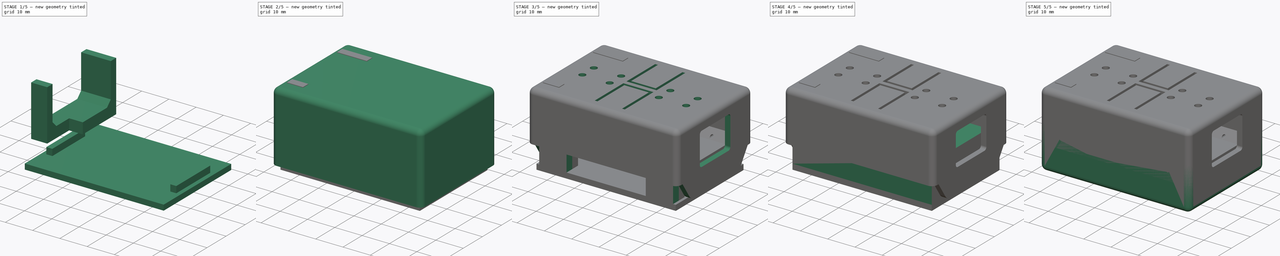
[diagram: build sequence overview — one tinted view per stage of 5, left to right]
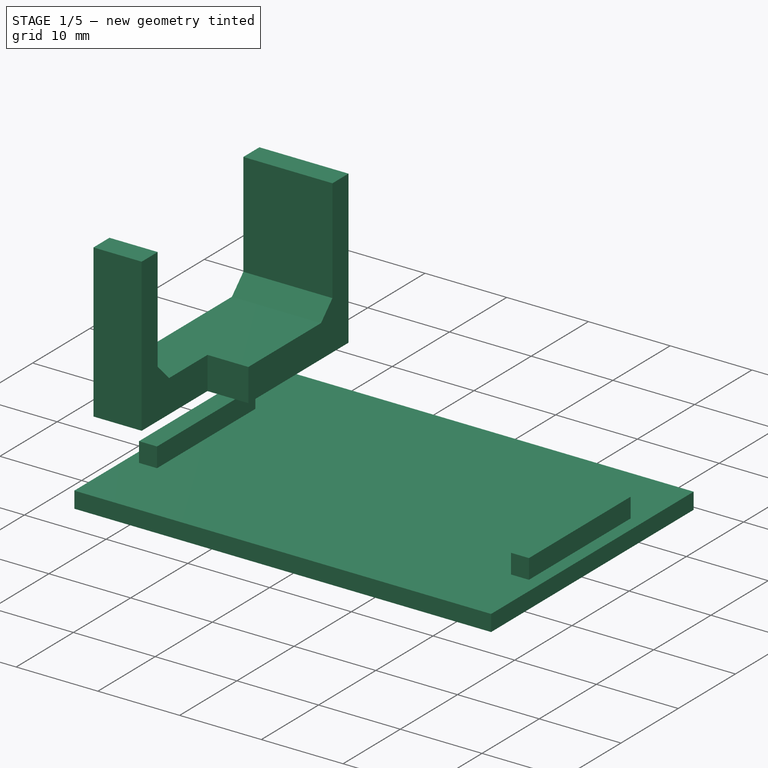
[diagram: stage 1 of 5 — iso view after this stage's code; geometry added in this stage tinted green]
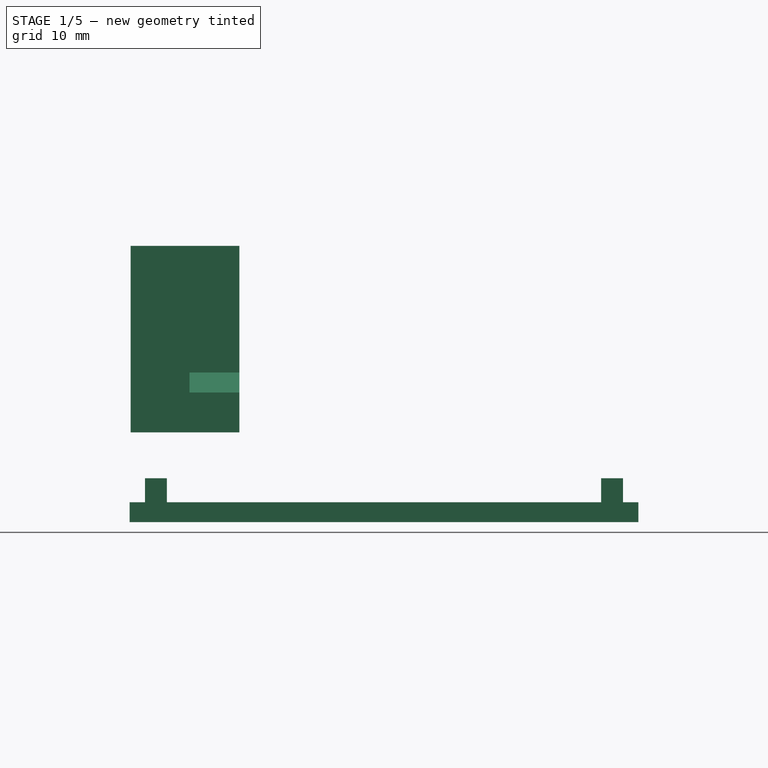
[diagram: stage 1 of 5 — front view after this stage's code; geometry added in this stage tinted green]
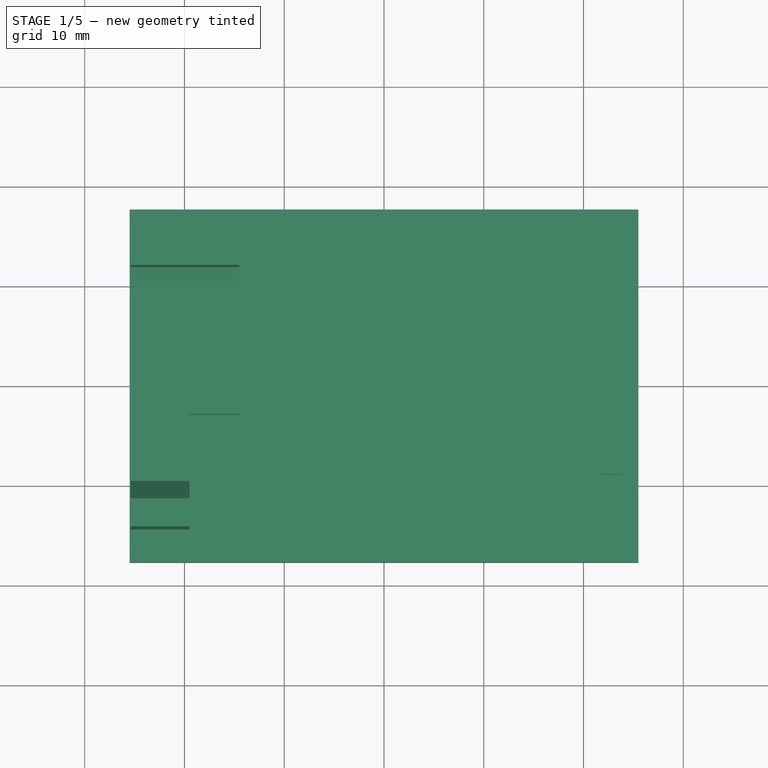
[diagram: stage 1 of 5 — top view after this stage's code; geometry added in this stage tinted green]
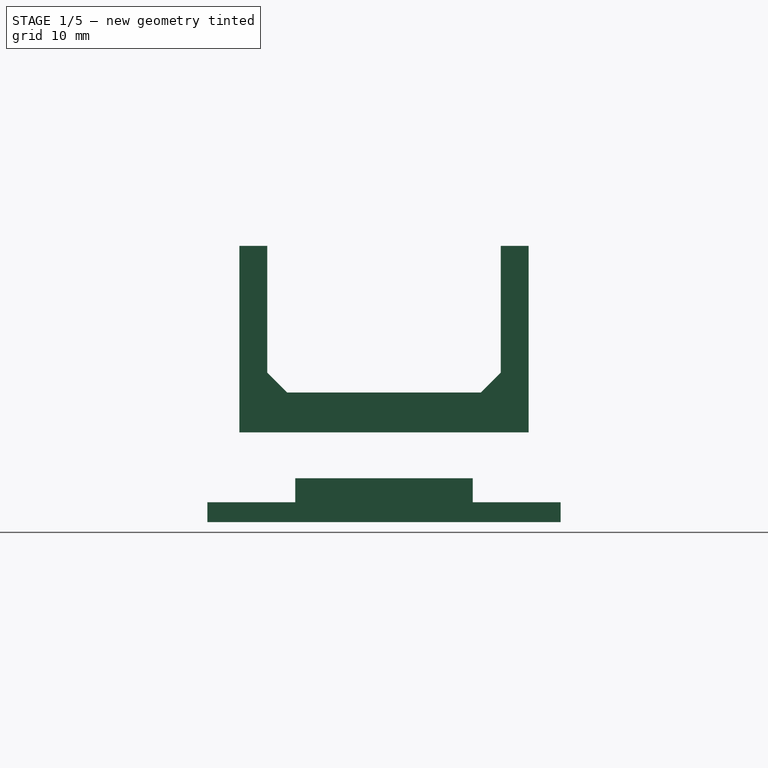
[diagram: stage 1 of 5 — right view after this stage's code; geometry added in this stage tinted green]
FCSTD DOCUMENT  (FreeCAD 0.21R33771 (Git))
Label: BME688_devkit_case
License: All rights reserved
LicenseURL: http://en.wikipedia.org/wiki/All_rights_reserved
objects: Part::Feature×47, Sketcher::SketchObject×28, PartDesign::Plane×15, PartDesign::Pad×14, PartDesign::Pocket×14, App::Part×7, PartDesign::Body×6, PartDesign::ShapeBinder×6, PartDesign::CoordinateSystem×4, PartDesign::Fillet×3, PartDesign::Thickness×2, PartDesign::Chamfer×2, Spreadsheet::Sheet×1, PartDesign::PolarPattern×1, PartDesign::Mirrored×1, PartDesign::MultiTransform×1
note: 179 computed .brp shape members not serialized (recipe doc carries the construction recipe); baked Part::Feature solids carry a one-line shape summary decoded from their .brp

FEATURE [PartDesign::Body] Body003  label="retainer_back"
  Group = -> [Local_CS002,DatumPlane010,Sketch023,Pad007,DatumPlane011,Sketch024,Pad008,Chamfer,ShapeBinder002,DatumPlane012,Sketch025,Pocket014]
  Origin = -> Origin010
  Tip = -> Pocket014
FEATURE [PartDesign::CoordinateSystem] Local_CS003  label="Local_CS_retainer_front"
  AttacherType = Attacher::AttachEngine3D
  MapMode = 2
FEATURE [PartDesign::Plane] DatumPlane013  label="DatumPlane_retainer_front"
  AttachmentOffset = pos=(0,0,7) rot=(0,0,1;0rad)
  Length = 60.4399
  MapMode = 5
  Placement = pos=(0,0,7) rot=(0,0,1;0rad)
  ResizeMode = 0
  Support = -> [Local_CS003]
  Width = 60.0399
FEATURE [Sketcher::SketchObject] Sketch026  label="base_retainer_front_sk"
  FullyConstrained = true
  MapMode = 5
  Placement = pos=(0,0,7) rot=(0,0,1;0rad)
  Support = -> [DatumPlane013]
  expr: Constraints[10] = <<ss>>.shell_bottom_width_inner / 2 - 3 - 0.2
  expr: Constraints[8] = <<ss>>.shell_bottom_length_inner / 2 - 0.1
  sketch-geometry (4):
    g0: LineSegment StartX=-25.4 StartY=-14.5 StartZ=0 EndX=-14.5 EndY=-14.5 EndZ=0
    g1: LineSegment StartX=-14.5 StartY=-14.5 StartZ=0 EndX=-14.5 EndY=14.5 EndZ=0
    g2: LineSegment StartX=-14.5 StartY=14.5 StartZ=0 EndX=-25.4 EndY=14.5 EndZ=0
    g3: LineSegment StartX=-25.4 StartY=14.5 StartZ=0 EndX=-25.4 EndY=-14.5 EndZ=0
  constraints (11):
    c: Coincident(g0,g1)
    c: Coincident(g1,g2)
    c: Coincident(g2,g3)
    c: Coincident(g3,g0)
    c: Horizontal(g0)
    c: Horizontal(g2)
    c: Vertical(g3)
    c: Symmetric(g1,g0,g-1)
    c: DistanceX(g2,g-1) = 25.4
    c: DistanceX(g2,g2) = 10.9
    c: DistanceY(g-1,g2) = 14.5
FEATURE [PartDesign::Pad] Pad009  label="base_retainer_front_pad"
  Direction = (0,0,1)
  Length = 4
  Length2 = 10
  Placement = pos=(0,0,7) rot=(0,0,1;0rad)
  Profile = -> Sketch026
  ReferenceAxis = -> Sketch026 [N_Axis]
  Type = 0
FEATURE [PartDesign::Plane] DatumPlane014  label="DatumPlane_ret_front_laterals"
  Length = 60.4399
  MapMode = 5
  Placement = pos=(0,0,11) rot=(0,0,1;0rad)
  ResizeMode = 0
  Support = -> [Pad009]
  Width = 60.0399
FEATURE [Sketcher::SketchObject] Sketch027  label="ret_front_hole_conn_sk"
  FullyConstrained = true
  MapMode = 5
  Placement = pos=(0,0,11) rot=(0,0,1;0rad)
  Support = -> [DatumPlane014]
  sketch-geometry (4):
    g0: LineSegment StartX=-19.5 StartY=-3 StartZ=0 EndX=-10.5 EndY=-3 EndZ=0
    g1: LineSegment StartX=-10.5 StartY=-3 StartZ=0 EndX=-10.5 EndY=-17 EndZ=0
    g2: LineSegment StartX=-10.5 StartY=-17 StartZ=0 EndX=-19.5 EndY=-17 EndZ=0
    g3: LineSegment StartX=-19.5 StartY=-17 StartZ=0 EndX=-19.5 EndY=-3 EndZ=0
  constraints (12):
    c: Coincident(g0,g1)
    c: Coincident(g1,g2)
    c: Coincident(g2,g3)
    c: Coincident(g3,g0)
    c: Horizontal(g0)
    c: Horizontal(g2)
    c: Vertical(g1)
    c: Vertical(g3)
    c: DistanceX(g2,g2) = 9
    c: DistanceY(g0,g-1) = 3
    c: DistanceX(g0,g-1) = 10.5
    c: DistanceY(g1,g1) = 14
FEATURE [PartDesign::Pocket] Pocket015  label="ret_front_hole_conn_pocket"
  BaseFeature = -> Pad009
  Direction = (0,0,-1)
  Length = 4
  Length2 = 5
  Placement = pos=(0,0,7) rot=(0,0,1;0rad)
  Profile = -> Sketch027
  ReferenceAxis = -> Sketch027 [N_Axis]
  Type = 1
FEATURE [Sketcher::SketchObject] Sketch028  label="retainers_front_laterals_sk"
  ExternalGeometry = -> [Pocket015]
  FullyConstrained = true
  MapMode = 5
  Placement = pos=(0,0,11) rot=(0,0,1;0rad)
  Support = -> [DatumPlane014]
  expr: Constraints[19] = <<ss>>.shell_bottom_length_inner / 2 - 0.1
  expr: Constraints[21] = <<ss>>.shell_bottom_width_inner / 2 - 3 - 0.2
  sketch-geometry (8):
    g0: LineSegment StartX=-25.4 StartY=-14.5 StartZ=0 EndX=-19.5 EndY=-14.5 EndZ=0
    g1: LineSegment StartX=-19.5 StartY=-14.5 StartZ=0 EndX=-19.5 EndY=-11.7 EndZ=0
    g2: LineSegment StartX=-19.5 StartY=-11.7 StartZ=0 EndX=-25.4 EndY=-11.7 EndZ=0
    g3: LineSegment StartX=-25.4 StartY=-11.7 StartZ=0 EndX=-25.4 EndY=-14.5 EndZ=0
    g4: LineSegment StartX=-25.4 StartY=14.5 StartZ=0 EndX=-14.5 EndY=14.5 EndZ=0
    g5: LineSegment StartX=-14.5 StartY=14.5 StartZ=0 EndX=-14.5 EndY=11.7 EndZ=0
    g6: LineSegment StartX=-14.5 StartY=11.7 StartZ=0 EndX=-25.4 EndY=11.7 EndZ=0
    g7: LineSegment StartX=-25.4 StartY=11.7 StartZ=0 EndX=-25.4 EndY=14.5 EndZ=0
  constraints (22):
    c: Coincident(g0,g1)
    c: Coincident(g1,g2)
    c: Coincident(g2,g3)
    c: Coincident(g3,g0)
    c: Horizontal(g2)
    c: Vertical(g1)
    c: Vertical(g3)
    c: Coincident(g4,g5)
    c: Coincident(g5,g6)
    c: Coincident(g6,g7)
    c: Coincident(g7,g4)
    c: Horizontal(g4)
    c: Horizontal(g6)
    c: Vertical(g5)
    c: Vertical(g7)
    c: DistanceX(g4,g4) = 10.9
    c: DistanceY(g7,g7) = 2.8
    c: Equal(g3,g7)
    c: Coincident(g0,g-3)
    c: DistanceX(g4,g-1) = 25.4
    c: Coincident(g0,g-3)
    c: DistanceY(g-1,g4) = 14.5
FEATURE [PartDesign::Pad] Pad010  label="retainers_front_laterals_pad"
  BaseFeature = -> Pocket015
  Direction = (0,0,1)
  Length = 14.7
  Length2 = 10
  Placement = pos=(0,0,7) rot=(0,0,1;0rad)
  Profile = -> Sketch028
  ReferenceAxis = -> Sketch028 [N_Axis]
  Type = 0
FEATURE [PartDesign::Chamfer] Chamfer001  label="Chamfer_ret_front"
  Angle = 45
  Base = -> Pad010 [Edge28,Edge29]
  BaseFeature = -> Pad010
  ChamferType = 0
  FlipDirection = false
  Placement = pos=(0,0,7) rot=(0,0,1;0rad)
  Size = 2
  Size2 = 1
  SupportTransform = false
  UseAllEdges = false
FEATURE [PartDesign::ShapeBinder] ShapeBinder003  label="ShapeBinder_ret_front_screw_hole"
  Placement = pos=(0,-22.6,7) rot=(1,0,0;1.5708rad)
  Support = -> [Sketch019]
  TraceSupport = true
FEATURE [PartDesign::Plane] DatumPlane015  label="DatumPlane_ret_front_screw"
  AttachmentOffset = pos=(0,0,-14.5) rot=(0,0,1;0rad)
  Length = 60.51
  MapMode = 3
  Placement = pos=(0,14.5,-3.2e-15) rot=(1,0,0;1.5708rad)
  ResizeMode = 0
  Support = -> [Local_CS003]
  Width = 60.81
  expr: .AttachmentOffset.Base.z = -<<ss>>.shell_bottom_width_inner / 2 + 3 + 0.2
FEATURE [PartDesign::Plane] DatumPlane016  label="DatumPlane_test_base"
  Length = 60
  MapMode = 2
  ResizeMode = 0
  Width = 60
FEATURE [Sketcher::SketchObject] Sketch030  label="test_base_sk"
  FullyConstrained = true
  MapMode = 5
  Support = -> [DatumPlane016]
  expr: Constraints[10] = <<ss>>.shell_bottom_width_inner
  expr: Constraints[9] = <<ss>>.shell_bottom_length_inner
  sketch-geometry (4):
    g0: LineSegment StartX=-25.5 StartY=17.7 StartZ=0 EndX=25.5 EndY=17.7 EndZ=0
    g1: LineSegment StartX=25.5 StartY=17.7 StartZ=0 EndX=25.5 EndY=-17.7 EndZ=0
    g2: LineSegment StartX=25.5 StartY=-17.7 StartZ=0 EndX=-25.5 EndY=-17.7 EndZ=0
    g3: LineSegment StartX=-25.5 StartY=-17.7 StartZ=0 EndX=-25.5 EndY=17.7 EndZ=0
  constraints (11):
    c: Coincident(g0,g1)
    c: Coincident(g1,g2)
    c: Coincident(g2,g3)
    c: Coincident(g3,g0)
    c: Horizontal(g0)
    c: Horizontal(g2)
    c: Vertical(g1)
    c: Vertical(g3)
    c: Symmetric(g1,g0,g-1)
    c: DistanceX(g0,g0) = 51
    c: DistanceY(g1,g1) = 35.4
FEATURE [PartDesign::Pad] Pad011  label="test_base_pad"
  Direction = (0,0,1)
  Length = 2
  Length2 = 10
  Profile = -> Sketch030
  ReferenceAxis = -> Sketch030 [N_Axis]
  Reversed = true
  Type = 0
FEATURE [PartDesign::ShapeBinder] ShapeBinder004  label="ShapeBinder_test_import_supports1"
  Placement = pos=(0,0,30.5) rot=(0,0,1;0rad)
  Support = -> [Sketch014]
  TraceSupport = true
FEATURE [Sketcher::SketchObject] Sketch031  label="test_base_supports1_sk"
  ExternalGeometry = -> [ShapeBinder004]
  FullyConstrained = true
  MapMode = 5
  Support = -> [DatumPlane016]
  sketch-geometry (8):
    g0: LineSegment StartX=-21.76 StartY=8.59 StartZ=0 EndX=-23.96 EndY=8.59 EndZ=0
    g1: LineSegment StartX=-23.96 StartY=8.59 StartZ=0 EndX=-23.96 EndY=-8.59 EndZ=0
    g2: LineSegment StartX=-23.96 StartY=-8.59 StartZ=0 EndX=-21.76 EndY=-8.59 EndZ=0
    g3: LineSegment StartX=-21.76 StartY=-8.59 StartZ=0 EndX=-21.76 EndY=8.59 EndZ=0
    g4: LineSegment StartX=21.76 StartY=8.89 StartZ=0 EndX=23.96 EndY=8.89 EndZ=0
    g5: LineSegment StartX=23.96 StartY=8.89 StartZ=0 EndX=23.96 EndY=-8.89 EndZ=0
    g6: LineSegment StartX=23.96 StartY=-8.89 StartZ=0 EndX=21.76 EndY=-8.89 EndZ=0
    g7: LineSegment StartX=21.76 StartY=-8.89 StartZ=0 EndX=21.76 EndY=8.89 EndZ=0
  constraints (20):
    c: Coincident(g0,g1)
    c: Coincident(g1,g2)
    c: Coincident(g2,g3)
    c: Coincident(g3,g0)
    c: Horizontal(g0)
    c: Horizontal(g2)
    c: Vertical(g1)
    c: Vertical(g3)
    c: Coincident(g0,g-4)
    c: Coincident(g1,g-3)
    c: Coincident(g4,g5)
    c: Coincident(g5,g6)
    c: Coincident(g6,g7)
    c: Coincident(g7,g4)
    c: Horizontal(g4)
    c: Horizontal(g6)
    c: Vertical(g5)
    c: Vertical(g7)
    c: Coincident(g4,g-5)
    c: Coincident(g5,g-6)
FEATURE [PartDesign::Pad] Pad012  label="test_base_supports1_pad"
  BaseFeature = -> Pad011
  Direction = (0,0,1)
  Length = 2.4
  Length2 = 10
  Profile = -> Sketch031
  ReferenceAxis = -> Sketch031 [N_Axis]
  Type = 0
FEATURE [PartDesign::Body] Body005  label="test_3dprint_base"
  Group = -> [DatumPlane016,Sketch030,Pad011,ShapeBinder004,Sketch031,Pad012,ShapeBinder005,Sketch032,Pad013]
  Origin = -> Origin012
  Tip = -> Pad013
FEATURE [Sketcher::SketchObject] Sketch033  label="ret_front_screw_holes_sk"
  ExternalGeometry = -> [ShapeBinder003]
  FullyConstrained = true
  MapMode = 5
  Placement = pos=(0,14.5,-3.2e-15) rot=(1,0,0;1.5708rad)
  Support = -> [DatumPlane015]
  sketch-geometry (1):
    g0: Circle CenterX=-19.5 CenterY=10.5 CenterZ=0 NormalX=0 NormalY=0 NormalZ=1 AngleXU=0 Radius=0.6
  constraints (2):
    c: Coincident(g0,g-3)
    c: Equal(g0,g-3)
FEATURE [PartDesign::Pocket] Pocket016  label="ret_front_screw_holes_pocket"
  BaseFeature = -> Chamfer001
  Direction = (0,1,-2e-16)
  Length = 4
  Length2 = 5
  Placement = pos=(0,0,7) rot=(0,0,1;0rad)
  Profile = -> Sketch033
  ReferenceAxis = -> Sketch033 [N_Axis]
  Refine = true
  Reversed = true
  Type = 0
FEATURE [PartDesign::Body] Body004  label="retainer_front"
  Group = -> [Local_CS003,DatumPlane013,Sketch026,Pad009,DatumPlane014,Sketch027,Pocket015,Sketch028,Pad010,Chamfer001,ShapeBinder003,DatumPlane015,Sketch033,Pocket016]
  Origin = -> Origin011
  Tip = -> Pocket016
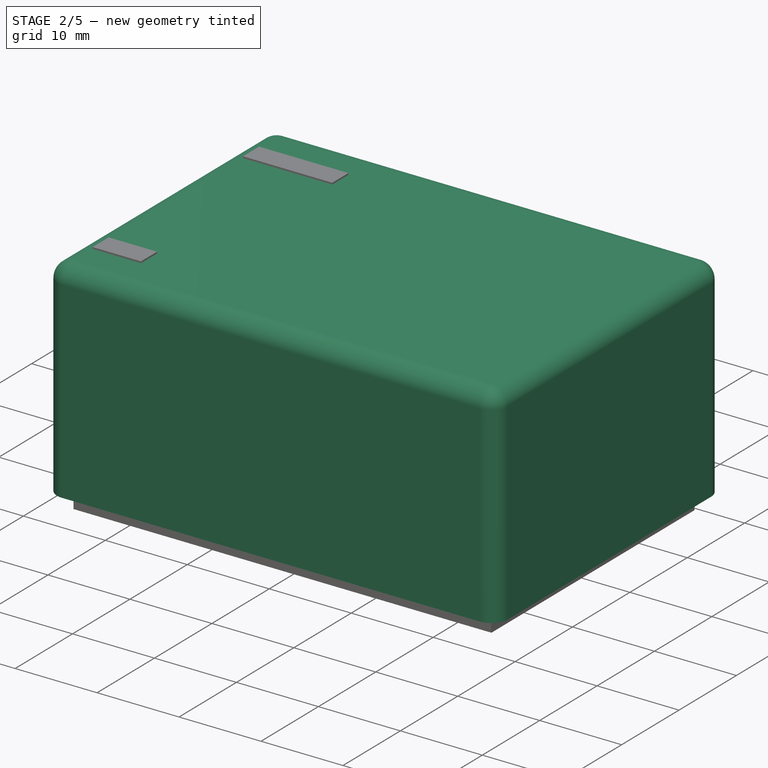
[diagram: stage 2 of 5 — iso view after this stage's code; geometry added in this stage tinted green]
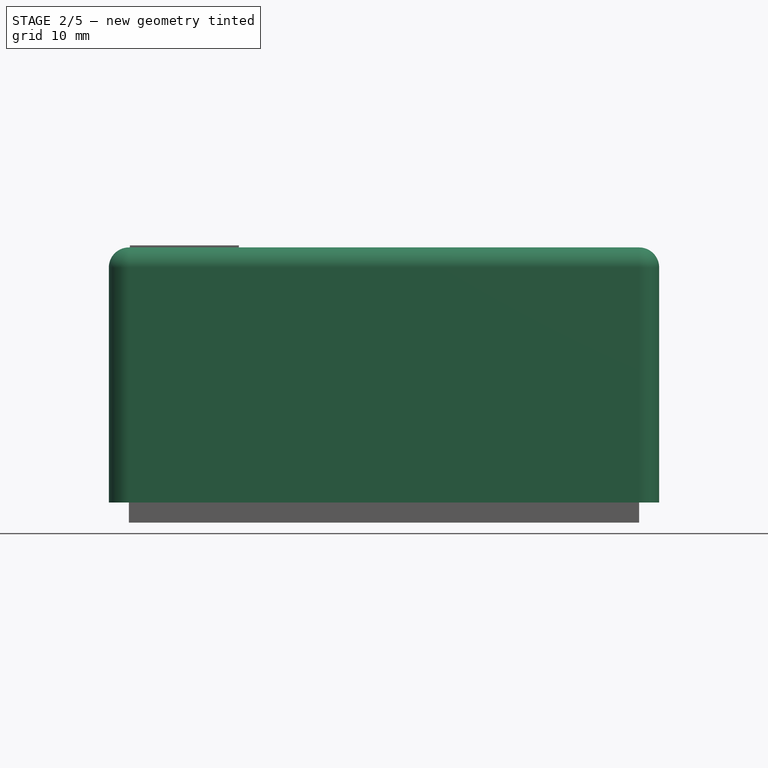
[diagram: stage 2 of 5 — front view after this stage's code; geometry added in this stage tinted green]
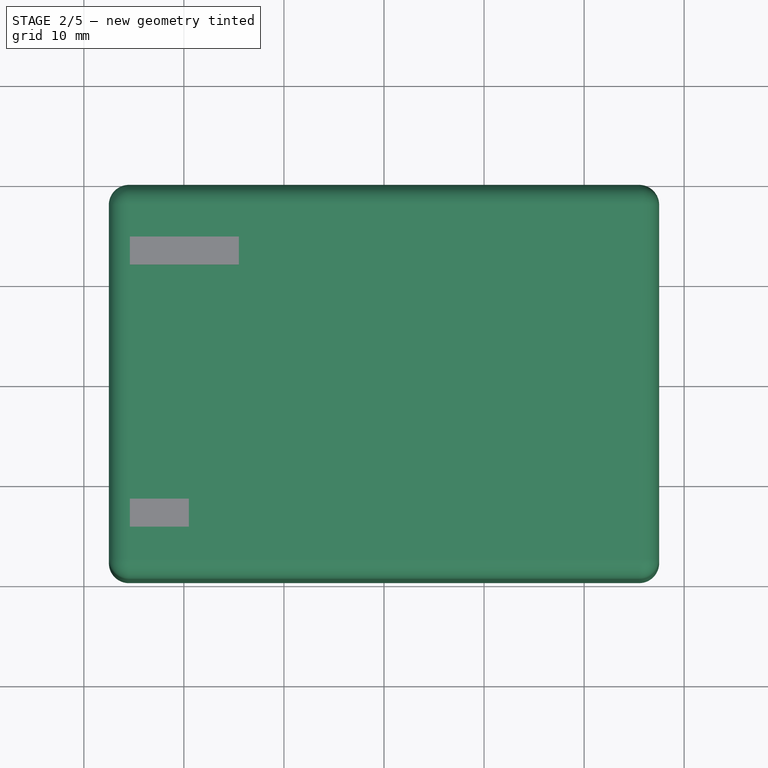
[diagram: stage 2 of 5 — top view after this stage's code; geometry added in this stage tinted green]
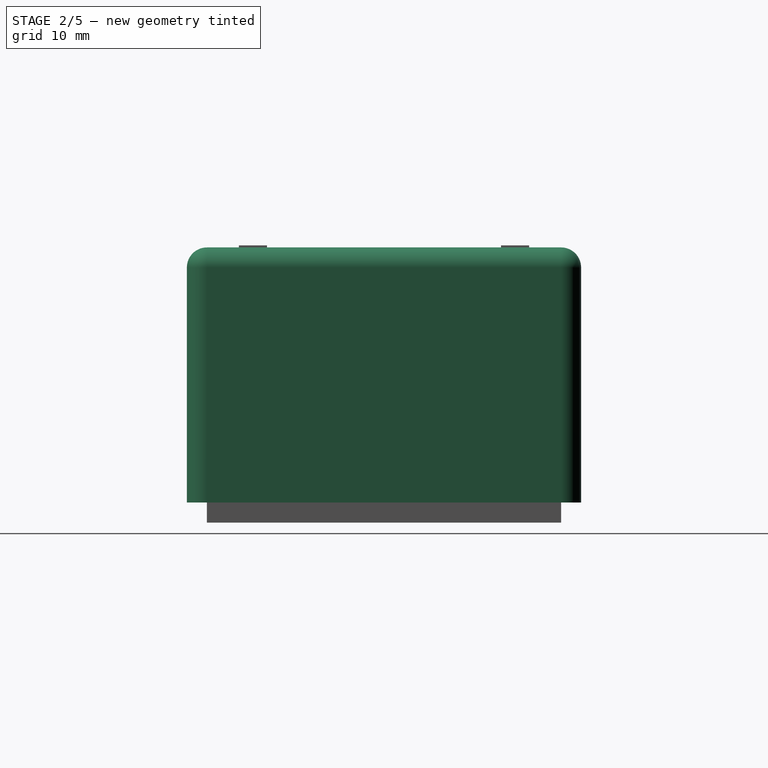
[diagram: stage 2 of 5 — right view after this stage's code; geometry added in this stage tinted green]
FEATURE [PartDesign::CoordinateSystem] Local_CS001
  AttacherType = Attacher::AttachEngine3D
  MapMode = 2
FEATURE [Sketcher::SketchObject] Sketch004  label="shell_top_inner_sk"
  FullyConstrained = true
  MapMode = 5
  Support = -> [XY_Plane002]
  expr: Constraints[10] = <<ss>>.shell_bottom_width_inner
  expr: Constraints[9] = <<ss>>.shell_bottom_length_inner
  sketch-geometry (4):
    g0: LineSegment StartX=-25.5 StartY=17.7 StartZ=0 EndX=25.5 EndY=17.7 EndZ=0
    g1: LineSegment StartX=25.5 StartY=17.7 StartZ=0 EndX=25.5 EndY=-17.7 EndZ=0
    g2: LineSegment StartX=25.5 StartY=-17.7 StartZ=0 EndX=-25.5 EndY=-17.7 EndZ=0
    g3: LineSegment StartX=-25.5 StartY=-17.7 StartZ=0 EndX=-25.5 EndY=17.7 EndZ=0
  constraints (11):
    c: Coincident(g0,g1)
    c: Coincident(g1,g2)
    c: Coincident(g2,g3)
    c: Coincident(g3,g0)
    c: Horizontal(g0)
    c: Horizontal(g2)
    c: Vertical(g1)
    c: Vertical(g3)
    c: Symmetric(g1,g0,g-1)
    c: DistanceX(g0,g0) = 51
    c: DistanceY(g1,g1) = 35.4
FEATURE [PartDesign::Pad] Pad002  label="shell_top_inner_pad"
  Direction = (0,0,1)
  Length = 23.5
  Length2 = 10
  Profile = -> Sketch004
  ReferenceAxis = -> Sketch004 [N_Axis]
  Type = 0
  expr: Length = <<ss>>.shell_top_height
FEATURE [PartDesign::Thickness] Thickness001  label="shell_top_walls"
  Base = -> Pad002 [Face5]
  BaseFeature = -> Pad002
  Intersection = false
  Join = 0
  Mode = 0
  SupportTransform = false
  Value = 2
  expr: Value = <<ss>>.shell_bottom_walls_thickness
FEATURE [PartDesign::Body] Body002  label="shell_top"
  Group = -> [Local_CS001,Sketch004,Pad002,Thickness001,ShapeBinder001,DatumPlane002,Sketch005,Pocket002,DatumPlane003,Sketch006,Pocket003,Sketch007,Pocket004,DatumPlane004,Sketch008,Pocket005,Sketch009,Pad003,Sketch010,Pocket006,DatumPlane005,Sketch011,Pad004,MultiTransform,PolarPattern,Mirrored,DatumPlane006,Pocket013,Sketch022,Sketch013,Pad005,Sketch014,Pad006,DatumPlane009,Sketch019,Pocket010,Fillet001,+1 more]
  Origin = -> Origin002
  Placement = pos=(0,0,7) rot=(0,0,1;0rad)
  Tip = -> Fillet002
FEATURE [PartDesign::CoordinateSystem] Local_CS002  label="Local_CS_retainer_back"
  AttacherType = Attacher::AttachEngine3D
  MapMode = 2
FEATURE [PartDesign::Plane] DatumPlane010  label="DatumPlane_retainer_back"
  AttachmentOffset = pos=(0,0,7) rot=(0,0,1;0rad)
  Length = 60.4399
  MapMode = 5
  Placement = pos=(0,0,7) rot=(0,0,1;0rad)
  ResizeMode = 0
  Support = -> [Local_CS002]
  Width = 60.0399
FEATURE [Sketcher::SketchObject] Sketch023  label="base_retainer_back_sk"
  FullyConstrained = true
  MapMode = 5
  Placement = pos=(0,0,7) rot=(0,0,1;0rad)
  Support = -> [DatumPlane010]
  expr: Constraints[10] = <<ss>>.shell_bottom_width_inner / 2 - 3 - 0.2
  expr: Constraints[9] = <<ss>>.shell_bottom_length_inner / 2 - 0.1
  sketch-geometry (4):
    g0: LineSegment StartX=14.5 StartY=14.5 StartZ=0 EndX=25.4 EndY=14.5 EndZ=0
    g1: LineSegment StartX=25.4 StartY=14.5 StartZ=0 EndX=25.4 EndY=-14.5 EndZ=0
    g2: LineSegment StartX=25.4 StartY=-14.5 StartZ=0 EndX=14.5 EndY=-14.5 EndZ=0
    g3: LineSegment StartX=14.5 StartY=-14.5 StartZ=0 EndX=14.5 EndY=14.5 EndZ=0
  constraints (11):
    c: Coincident(g0,g1)
    c: Coincident(g1,g2)
    c: Coincident(g2,g3)
    c: Coincident(g3,g0)
    c: Horizontal(g0)
    c: Horizontal(g2)
    c: Vertical(g3)
    c: Symmetric(g1,g0,g-1)
    c: DistanceX(g0,g0) = 10.9
    c: DistanceX(g-1,g0) = 25.4
    c: DistanceY(g-1,g0) = 14.5
FEATURE [PartDesign::Pad] Pad007  label="base_retainer_back_pad"
  Direction = (0,0,1)
  Length = 2.8
  Length2 = 10
  Placement = pos=(0,0,7) rot=(0,0,1;0rad)
  Profile = -> Sketch023
  ReferenceAxis = -> Sketch023 [N_Axis]
  Type = 0
FEATURE [PartDesign::Plane] DatumPlane011  label="DatumPlane_ret_back_laterals"
  AttachmentOffset = pos=(0,0,9.8) rot=(0,0,1;0rad)
  Length = 60.4399
  MapMode = 5
  Placement = pos=(0,0,9.8) rot=(0,0,1;0rad)
  ResizeMode = 0
  Support = -> [Local_CS002]
  Width = 60.0399
FEATURE [Sketcher::SketchObject] Sketch024  label="retainer_back_laterals_sk"
  FullyConstrained = true
  MapMode = 5
  Placement = pos=(0,0,9.8) rot=(0,0,1;0rad)
  Support = -> [DatumPlane011]
  expr: Constraints[17] = <<ss>>.shell_bottom_width_inner / 2 - 3 - 0.2
  expr: Constraints[21] = <<ss>>.shell_bottom_length_inner / 2 - 0.1
  sketch-geometry (8):
    g0: LineSegment StartX=14.5 StartY=-11.7 StartZ=0 EndX=25.4 EndY=-11.7 EndZ=0
    g1: LineSegment StartX=25.4 StartY=-11.7 StartZ=0 EndX=25.4 EndY=-14.5 EndZ=0
    g2: LineSegment StartX=25.4 StartY=-14.5 StartZ=0 EndX=14.5 EndY=-14.5 EndZ=0
    g3: LineSegment StartX=14.5 StartY=-14.5 StartZ=0 EndX=14.5 EndY=-11.7 EndZ=0
    g4: LineSegment StartX=14.5 StartY=14.5 StartZ=0 EndX=25.4 EndY=14.5 EndZ=0
    g5: LineSegment StartX=25.4 StartY=14.5 StartZ=0 EndX=25.4 EndY=11.7 EndZ=0
    g6: LineSegment StartX=25.4 StartY=11.7 StartZ=0 EndX=14.5 EndY=11.7 EndZ=0
    g7: LineSegment StartX=14.5 StartY=11.7 StartZ=0 EndX=14.5 EndY=14.5 EndZ=0
  constraints (23):
    c: Coincident(g0,g1)
    c: Coincident(g1,g2)
    c: Coincident(g2,g3)
    c: Coincident(g3,g0)
    c: Horizontal(g0)
    c: Horizontal(g2)
    c: Vertical(g1)
    c: Vertical(g3)
    c: Coincident(g4,g5)
    c: Coincident(g5,g6)
    c: Coincident(g6,g7)
    c: Coincident(g7,g4)
    c: Horizontal(g4)
    c: Horizontal(g6)
    c: Vertical(g5)
    c: Vertical(g7)
    c: DistanceX(g2,g2) = 10.9
    c: DistanceY(g1,g-1) = 14.5
    c: Symmetric(g1,g4,g-1)
    c: Equal(g2,g4)
    c: Equal(g3,g7)
    c: DistanceX(g-1,g1) = 25.4
    c: DistanceY(g1,g1) = 2.8
FEATURE [PartDesign::Pad] Pad008  label="retainer_back_laterals_pad"
  BaseFeature = -> Pad007
  Direction = (0,0,1)
  Length = 15.6
  Length2 = 10
  Placement = pos=(0,0,7) rot=(0,0,1;0rad)
  Profile = -> Sketch024
  ReferenceAxis = -> Sketch024 [N_Axis]
  Type = 0
FEATURE [PartDesign::Chamfer] Chamfer  label="Chamfer_retainer_back_laterals"
  Angle = 45
  Base = -> Pad008 [Edge23,Edge24]
  BaseFeature = -> Pad008
  ChamferType = 0
  FlipDirection = false
  Placement = pos=(0,0,7) rot=(0,0,1;0rad)
  Size = 2.8
  Size2 = 1
  SupportTransform = false
  UseAllEdges = false
FEATURE [PartDesign::ShapeBinder] ShapeBinder002  label="ShapeBinder_ret_back_screws"
  Placement = pos=(0,-22.6,7) rot=(1,0,0;1.5708rad)
  Support = -> [Sketch019]
  TraceSupport = true
FEATURE [PartDesign::Plane] DatumPlane012  label="DatumPlane_ret_back_screws_holes"
  AttachmentOffset = pos=(0,0,14.5) rot=(0,0,1;0rad)
  Length = 60.48
  MapMode = 3
  Placement = pos=(0,-14.5,3.2e-15) rot=(1,0,0;1.5708rad)
  ResizeMode = 0
  Support = -> [Local_CS002]
  Width = 60.48
  expr: .AttachmentOffset.Base.z = <<ss>>.shell_bottom_width_inner / 2 - 3 - 0.2
FEATURE [Sketcher::SketchObject] Sketch025  label="ret_back_screw_holes_sk"
  ExternalGeometry = -> [ShapeBinder002]
  FullyConstrained = true
  MapMode = 5
  Placement = pos=(0,-14.5,3.2e-15) rot=(1,0,0;1.5708rad)
  Support = -> [DatumPlane012]
  sketch-geometry (1):
    g0: Circle CenterX=19.5 CenterY=10.5 CenterZ=0 NormalX=0 NormalY=0 NormalZ=1 AngleXU=0 Radius=0.6
  constraints (2):
    c: Coincident(g0,g-3)
    c: Tangent(g0,g-3)
FEATURE [PartDesign::Pocket] Pocket014  label="ret_back_screw_holes_pocket"
  BaseFeature = -> Chamfer
  Direction = (0,1,-2e-16)
  Length = 5
  Length2 = 5
  Placement = pos=(0,0,7) rot=(0,0,1;0rad)
  Profile = -> Sketch025
  ReferenceAxis = -> Sketch025 [N_Axis]
  Refine = true
  Type = 1
FEATURE [PartDesign::ShapeBinder] ShapeBinder005  label="ShapeBinder_test_import_supports2"
  Placement = pos=(0,0,30.5) rot=(0,0,1;0rad)
  Support = -> [Sketch013]
  TraceSupport = true
FEATURE [Sketcher::SketchObject] Sketch032  label="test_base_supports2_sk"
  ExternalGeometry = -> [ShapeBinder005]
  FullyConstrained = true
  MapMode = 5
  Support = -> [DatumPlane016]
  sketch-geometry (20):
    g0: LineSegment StartX=-14.5 StartY=11.68 StartZ=0 EndX=-24.5 EndY=11.68 EndZ=0
    g1: LineSegment StartX=-24.5 StartY=11.68 StartZ=0 EndX=-24.5 EndY=14.7 EndZ=0
    g2: LineSegment StartX=-24.5 StartY=14.7 StartZ=0 EndX=-14.5 EndY=14.7 EndZ=0
    g3: LineSegment StartX=-14.5 StartY=14.7 StartZ=0 EndX=-14.5 EndY=11.68 EndZ=0
    g4: LineSegment StartX=14.5 StartY=11.68 StartZ=0 EndX=24.5 EndY=11.68 EndZ=0
    g5: LineSegment StartX=24.5 StartY=11.68 StartZ=0 EndX=24.5 EndY=14.7 EndZ=0
    g6: LineSegment StartX=24.5 StartY=14.7 StartZ=0 EndX=14.5 EndY=14.7 EndZ=0
    g7: LineSegment StartX=14.5 StartY=14.7 StartZ=0 EndX=14.5 EndY=11.68 EndZ=0
    g8: LineSegment StartX=-24.5 StartY=-14.7 StartZ=0 EndX=-14.5 EndY=-14.7 EndZ=0
    g9: LineSegment StartX=-14.5 StartY=-14.7 StartZ=0 EndX=-14.5 EndY=-11.68 EndZ=0
    g10: LineSegment StartX=-14.5 StartY=-11.68 StartZ=0 EndX=-24.5 EndY=-11.68 EndZ=0
    g11: LineSegment StartX=-24.5 StartY=-11.68 StartZ=0 EndX=-24.5 EndY=-14.7 EndZ=0
    g12: LineSegment StartX=24.5 StartY=-14.7 StartZ=0 EndX=14.5 EndY=-14.7 EndZ=0
    g13: LineSegment StartX=14.5 StartY=-14.7 StartZ=0 EndX=14.5 EndY=-11.68 EndZ=0
    g14: LineSegment StartX=14.5 StartY=-11.68 StartZ=0 EndX=24.5 EndY=-11.68 EndZ=0
    g15: LineSegment StartX=24.5 StartY=-11.68 StartZ=0 EndX=24.5 EndY=-14.7 EndZ=0
    g16: Circle CenterX=-22.86 CenterY=-8.59 CenterZ=0 NormalX=0 NormalY=0 NormalZ=1 AngleXU=0 Radius=1.1
    g17: Circle CenterX=-22.86 CenterY=8.59 CenterZ=0 NormalX=0 NormalY=0 NormalZ=1 AngleXU=0 Radius=1.1
    g18: Circle CenterX=22.86 CenterY=8.89 CenterZ=0 NormalX=0 NormalY=0 NormalZ=1 AngleXU=0 Radius=1.1
    g19: Circle CenterX=22.86 CenterY=-8.89 CenterZ=0 NormalX=0 NormalY=0 NormalZ=1 AngleXU=0 Radius=1.1
  constraints (48):
    c: Coincident(g0,g1)
    c: Coincident(g1,g2)
    c: Coincident(g2,g3)
    c: Coincident(g3,g0)
    c: Horizontal(g0)
    c: Horizontal(g2)
    c: Vertical(g1)
    c: Vertical(g3)
    c: Coincident(g0,g-13)
    c: Coincident(g1,g-14)
    c: Coincident(g4,g5)
    c: Coincident(g5,g6)
    c: Coincident(g6,g7)
    c: Coincident(g7,g4)
    c: Horizontal(g4)
    c: Horizontal(g6)
    c: Vertical(g5)
    c: Vertical(g7)
    c: Coincident(g4,g-11)
    c: Coincident(g5,g-12)
    c: Coincident(g8,g9)
    c: Coincident(g9,g10)
    c: Coincident(g10,g11)
    c: Coincident(g11,g8)
    c: Horizontal(g8)
    c: Horizontal(g10)
    c: Vertical(g9)
    c: Vertical(g11)
    c: Coincident(g8,g-8)
    c: Coincident(g9,g-7)
    c: Coincident(g12,g13)
    c: Coincident(g13,g14)
    c: Coincident(g14,g15)
    c: Coincident(g15,g12)
    c: Horizontal(g12)
    c: Horizontal(g14)
    c: Vertical(g13)
    c: Vertical(g15)
    c: Coincident(g12,g-10)
    c: Coincident(g13,g-9)
    c: Coincident(g17,g-3)
    c: Coincident(g18,g-4)
    c: Coincident(g19,g-5)
    c: Equal(g16,g-6)
    c: Equal(g19,g-5)
    c: Equal(g18,g-4)
    c: Equal(g17,g-3)
    c: Coincident(g16,g-6)
FEATURE [PartDesign::Pad] Pad013  label="test_base_supports2_pad"
  BaseFeature = -> Pad012
  Direction = (0,0,1)
  Length = 5
  Length2 = 10
  Profile = -> Sketch032
  ReferenceAxis = -> Sketch032 [N_Axis]
  Refine = true
  Type = 0
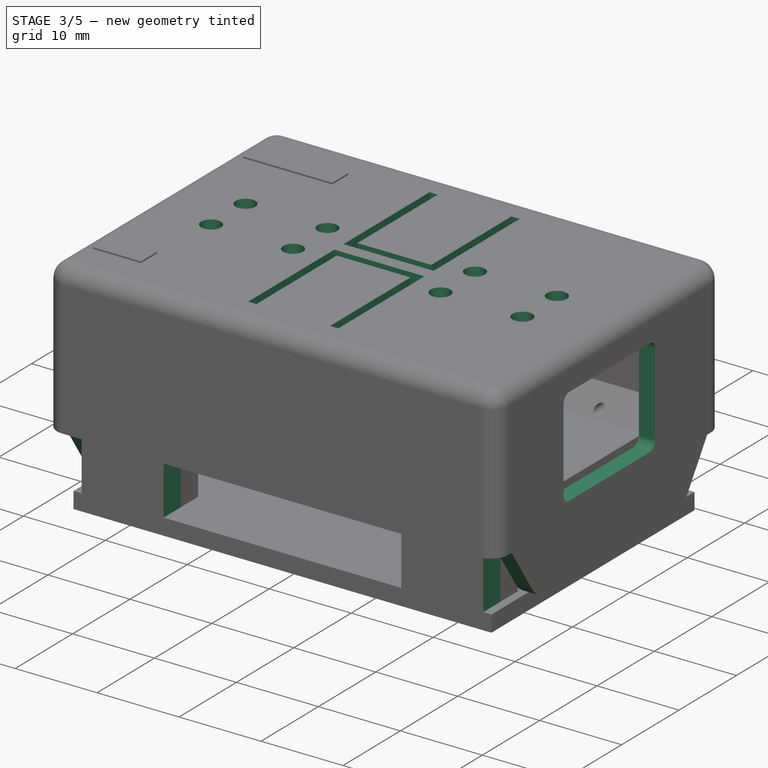
[diagram: stage 3 of 5 — iso view after this stage's code; geometry added in this stage tinted green]
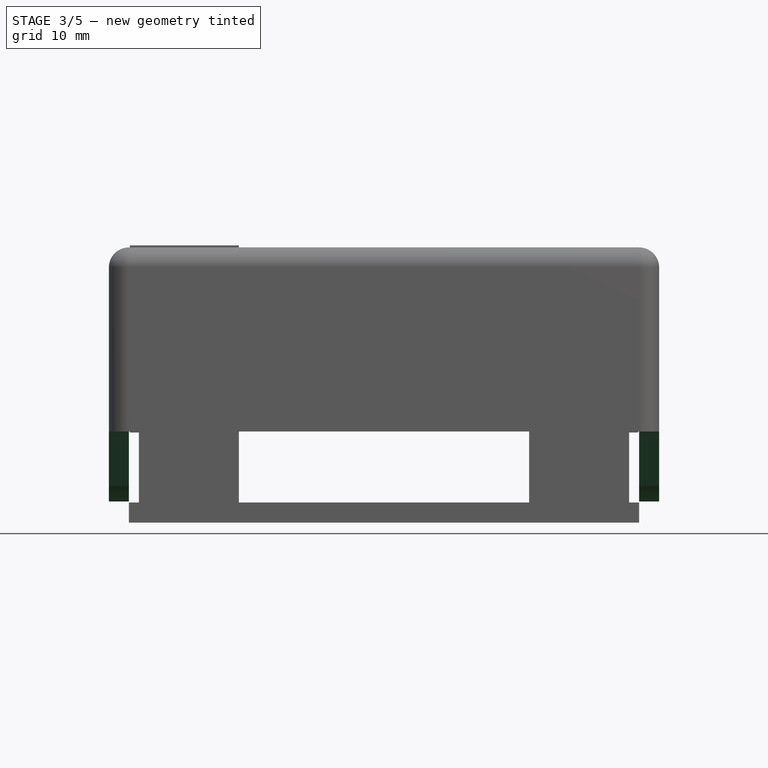
[diagram: stage 3 of 5 — front view after this stage's code; geometry added in this stage tinted green]
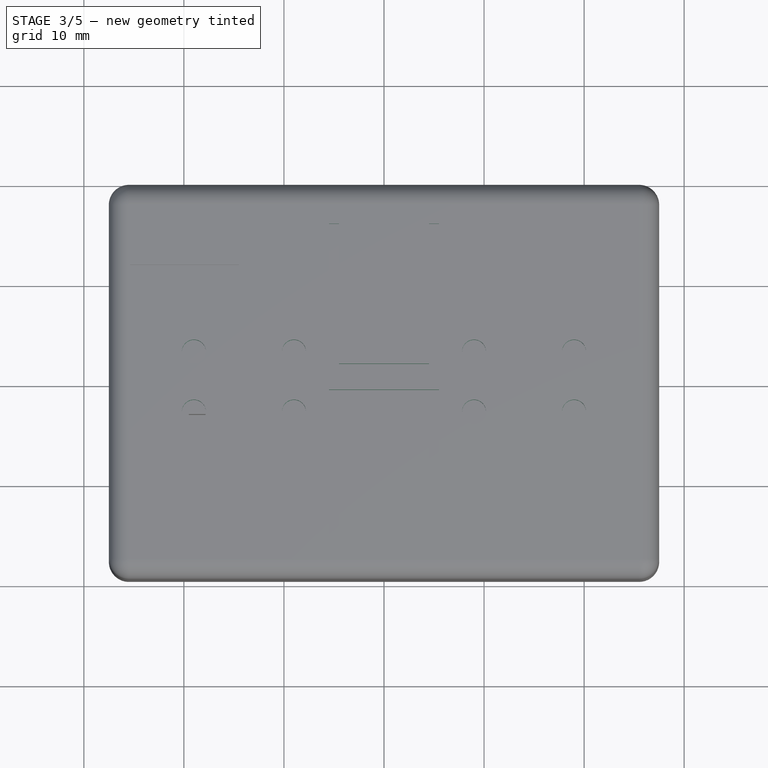
[diagram: stage 3 of 5 — top view after this stage's code; geometry added in this stage tinted green]
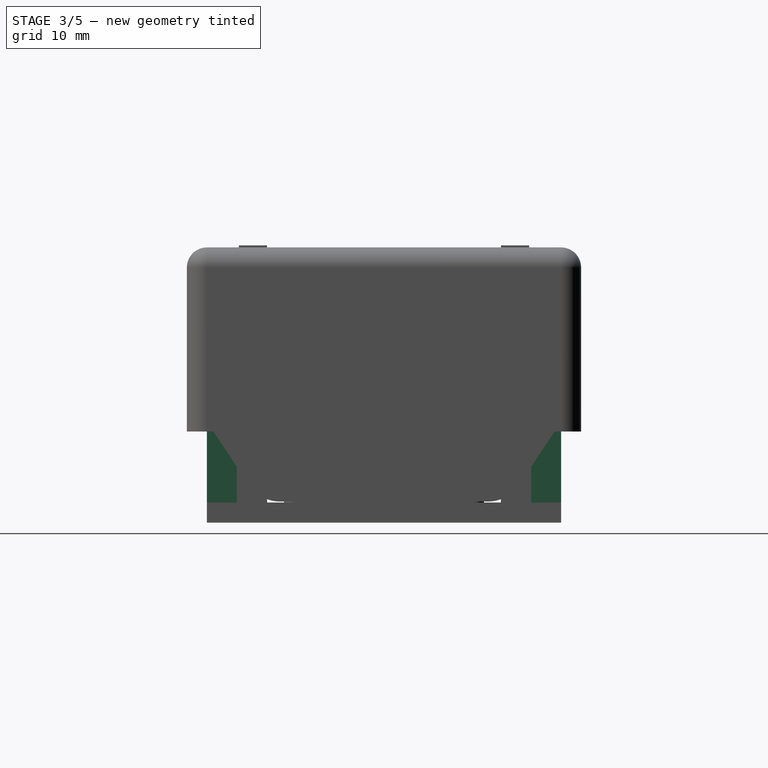
[diagram: stage 3 of 5 — right view after this stage's code; geometry added in this stage tinted green]
FEATURE [PartDesign::Body] Body001  label="shell_bottom"
  Group = -> [Local_CS,Sketch001,Pad001,Thickness,DatumPlane,Sketch002,Pocket,DatumPlane001,Sketch003,Pocket001,ShapeBinder,Sketch020,Sketch021,Fillet,Pocket011,Pocket012]
  Origin = -> Origin001
  Tip = -> Pocket012
FEATURE [PartDesign::ShapeBinder] ShapeBinder001  label="ShapeBinder_lateraly_keys"
  Placement = pos=(27.5,0,0) rot=(0.57735,0.57735,0.57735;2.0944rad)
  Support = -> [Sketch003]
  TraceSupport = false
FEATURE [Sketcher::SketchObject] Sketch005  label="shell_top_lateral_keys_sk"
  ExternalGeometry = -> [ShapeBinder001]
  FullyConstrained = true
  MapMode = 5
  Placement = pos=(27.5,0,0) rot=(0.57735,0.57735,0.57735;2.0944rad)
  Support = -> [DatumPlane002]
  sketch-geometry (12):
    g0: LineSegment StartX=17.046 StartY=7.1 StartZ=0 EndX=13.5274 EndY=1.79861 EndZ=0
    g1: LineSegment StartX=10.3613 StartY=0.1 StartZ=0 EndX=-10.3613 EndY=0.1 EndZ=0
    g2: LineSegment StartX=-13.5274 StartY=1.79861 StartZ=0 EndX=-17.046 EndY=7.1 EndZ=0
    g3: ArcOfCircle CenterX=10.3613 CenterY=3.9 CenterZ=0 NormalX=0 NormalY=0 NormalZ=1 AngleXU=0 Radius=3.8 StartAngle=4.71239 EndAngle=5.69723
    g4: GeomPoint X=12.4 Y=0.1 Z=0
    g5: ArcOfCircle CenterX=-10.3613 CenterY=3.9 CenterZ=0 NormalX=0 NormalY=0 NormalZ=1 AngleXU=0 Radius=3.8 StartAngle=3.72755 EndAngle=4.71239
    g6: GeomPoint X=-12.4 Y=0.1 Z=0
    g7: LineSegment StartX=-17.046 StartY=7.1 StartZ=0 EndX=-40 EndY=7.1 EndZ=0
    g8: LineSegment StartX=-40 StartY=7.1 StartZ=0 EndX=-40 EndY=-32.9 EndZ=0
    g9: LineSegment StartX=-40 StartY=-32.9 StartZ=0 EndX=40 EndY=-32.9 EndZ=0
    g10: LineSegment StartX=40 StartY=-32.9 StartZ=0 EndX=40 EndY=7.1 EndZ=0
    g11: LineSegment StartX=40 StartY=7.1 StartZ=0 EndX=17.046 EndY=7.1 EndZ=0
  constraints (30):
    c: PointOnObject(g4,g0)
    c: PointOnObject(g4,g1)
    c: Tangent(g0,g3) = 1.5708
    c: Tangent(g1,g3) = 1.5708
    c: PointOnObject(g6,g2)
    c: PointOnObject(g6,g1)
    c: Tangent(g2,g5) = 1.5708
    c: Tangent(g1,g5) = 1.5708
    c: Horizontal(g7)
    c: Coincident(g7,g8)
    c: Coincident(g8,g9)
    c: Horizontal(g9)
    c: Coincident(g9,g10)
    c: Vertical(g10)
    c: Coincident(g10,g11)
    c: Horizontal(g11)
    c: Symmetric(g3,g5,g-2)
    c: Vertical(g8)
    c: Equal(g11,g7)
    c: DistanceY(g10,g10) = 40
    c: DistanceX(g7,g10) = 80
    c: DistanceX(g6,g4) = 24.8
    c: Radius(g3) = 3.8
    c: DistanceY(g4,g11) = 7
    c: DistanceY(g-1,g1) = 0.1
    c: Horizontal(g1)
    c: Coincident(g0,g11)
    c: Coincident(g2,g7)
    c: Symmetric(g2,g0,g-2)
    c: Parallel(g-3,g2)
FEATURE [PartDesign::Pocket] Pocket002  label="shell_top_lateral_keys_pocket"
  BaseFeature = -> Thickness001
  Direction = (-1,0,0)
  Length = 5
  Length2 = 5
  Profile = -> Sketch005
  ReferenceAxis = -> Sketch005 [N_Axis]
  Type = 1
FEATURE [PartDesign::Pocket] Pocket003  label="usb_window_pocket"
  BaseFeature = -> Pocket002
  Direction = (-1,0,0)
  Length = 5
  Length2 = 5
  Profile = -> Sketch006
  ReferenceAxis = -> Sketch006 [N_Axis]
  Reversed = true
  Type = 2
FEATURE [PartDesign::Pocket] Pocket004  label="sdcard_window_pocket"
  BaseFeature = -> Pocket003
  Direction = (-1,0,0)
  Length = 5
  Length2 = 5
  Profile = -> Sketch007
  ReferenceAxis = -> Sketch007 [N_Axis]
  Type = 2
FEATURE [PartDesign::Pocket] Pocket005  label="buttons_cutout_pocket"
  BaseFeature = -> Pocket004
  Direction = (0,0,-1)
  Length = 5
  Length2 = 5
  Profile = -> Sketch008
  ReferenceAxis = -> Sketch008 [N_Axis]
  Type = 2
FEATURE [Sketcher::SketchObject] Sketch009  label="buttons_bump_sk"
  ExternalGeometry = -> [Pocket005]
  FullyConstrained = true
  MapMode = 5
  Placement = pos=(0,0,23.5) rot=(1,0,0;3.14159rad)
  Support = -> [Pocket005]
  sketch-geometry (18):
    g0: LineSegment StartX=-3 StartY=-1.8 StartZ=0 EndX=3 EndY=-1.8 EndZ=0
    g1: LineSegment StartX=3 StartY=-1.8 StartZ=0 EndX=3 EndY=-4.2 EndZ=0
    g2: LineSegment StartX=3 StartY=-4.2 StartZ=0 EndX=-3 EndY=-4.2 EndZ=0
    g3: LineSegment StartX=-3 StartY=-4.2 StartZ=0 EndX=-3 EndY=-1.8 EndZ=0
    g4: LineSegment StartX=-3 StartY=4.2 StartZ=0 EndX=3 EndY=4.2 EndZ=0
    g5: LineSegment StartX=3 StartY=4.2 StartZ=0 EndX=3 EndY=1.8 EndZ=0
    g6: LineSegment StartX=3 StartY=1.8 StartZ=0 EndX=-3 EndY=1.8 EndZ=0
    g7: LineSegment StartX=-3 StartY=1.8 StartZ=0 EndX=-3 EndY=4.2 EndZ=0
    g8: LineSegment StartX=1.75001e-11 StartY=-1.8 StartZ=0 EndX=1.75001e-11 EndY=-3 EndZ=0
    g9: LineSegment StartX=1.75001e-11 StartY=1.8 StartZ=0 EndX=1.75001e-11 EndY=3 EndZ=0
    g10: LineSegment StartX=1.75001e-11 StartY=3 StartZ=0 EndX=4.5 EndY=1.8 EndZ=0
    g11: LineSegment StartX=1.75001e-11 StartY=3 StartZ=0 EndX=-4.5 EndY=1.8 EndZ=0
    g12: LineSegment StartX=-3 StartY=-1.8 StartZ=0 EndX=3 EndY=-4.2 EndZ=0
    g13: LineSegment StartX=3 StartY=-1.8 StartZ=0 EndX=-3 EndY=-4.2 EndZ=0
    g14: LineSegment StartX=-3 StartY=1.8 StartZ=0 EndX=3 EndY=4.2 EndZ=0
    g15: LineSegment StartX=3 StartY=1.8 StartZ=0 EndX=-3 EndY=4.2 EndZ=0
    g16: GeomPoint X=1.75001e-11 Y=3 Z=0
    g17: GeomPoint X=1.75001e-11 Y=-3 Z=0
  constraints (45):
    c: Coincident(g0,g1)
    c: Coincident(g1,g2)
    c: Coincident(g2,g3)
    c: Coincident(g3,g0)
    c: Horizontal(g0)
    c: Horizontal(g2)
    c: Vertical(g1)
    c: Vertical(g3)
    c: Coincident(g4,g5)
    c: Coincident(g5,g6)
    c: Coincident(g6,g7)
    c: Coincident(g7,g4)
    c: Horizontal(g4)
    c: Horizontal(g6)
    c: Vertical(g5)
    c: Vertical(g7)
    c: Vertical(g8)
    c: Vertical(g9)
    c: Coincident(g10,g9)
    c: Coincident(g11,g9)
    c: Equal(g11,g10)
    c: Equal(g9,g8)
    c: DistanceY(g9,g9) = 1.2
    c: Equal(g1,g5)
    c: Equal(g4,g2)
    c: Coincident(g12,g0)
    c: Coincident(g12,g1)
    c: Coincident(g13,g0)
    c: Coincident(g13,g2)
    c: Coincident(g14,g6)
    c: Coincident(g14,g4)
    c: Coincident(g15,g5)
    c: Coincident(g15,g4)
    c: PointOnObject(g16,g15)
    c: PointOnObject(g17,g12)
    c: PointOnObject(g17,g13)
    c: PointOnObject(g16,g14)
    c: Coincident(g16,g9)
    c: Coincident(g8,g17)
    c: DistanceY(g1,g1) = 2.4
    c: DistanceX(g2,g2) = 6
    c: Coincident(g10,g-3)
    c: Coincident(g11,g-3)
    c: PointOnObject(g6,g-3)
    c: Symmetric(g9,g8,g-1)
FEATURE [PartDesign::Pad] Pad003  label="buttons_bump_pad"
  BaseFeature = -> Pocket005
  Direction = (0,0,-1)
  Length = 0.5
  Length2 = 10
  Profile = -> Sketch009
  ReferenceAxis = -> Sketch009 [N_Axis]
  Type = 0
FEATURE [PartDesign::Pocket] Pocket006  label="sensors_holes_pockets"
  BaseFeature = -> Pad003
  Direction = (0,0,-1)
  Length = 5
  Length2 = 5
  Profile = -> Sketch010
  ReferenceAxis = -> Sketch010 [N_Axis]
  Type = 2
FEATURE [PartDesign::Pad] Pad004  label="shell_top_turrets_pad"
  BaseFeature = -> Pocket006
  Direction = (0,0,1)
  Length = 23.5
  Length2 = 10
  Profile = -> Sketch011
  ReferenceAxis = -> Sketch011 [N_Axis]
  Reversed = true
  Type = 0
FEATURE [PartDesign::MultiTransform] MultiTransform  label="turrets_group"
  BaseFeature = -> Pad004
  Originals = -> [Pad004]
  Transformations = -> [PolarPattern,Mirrored]
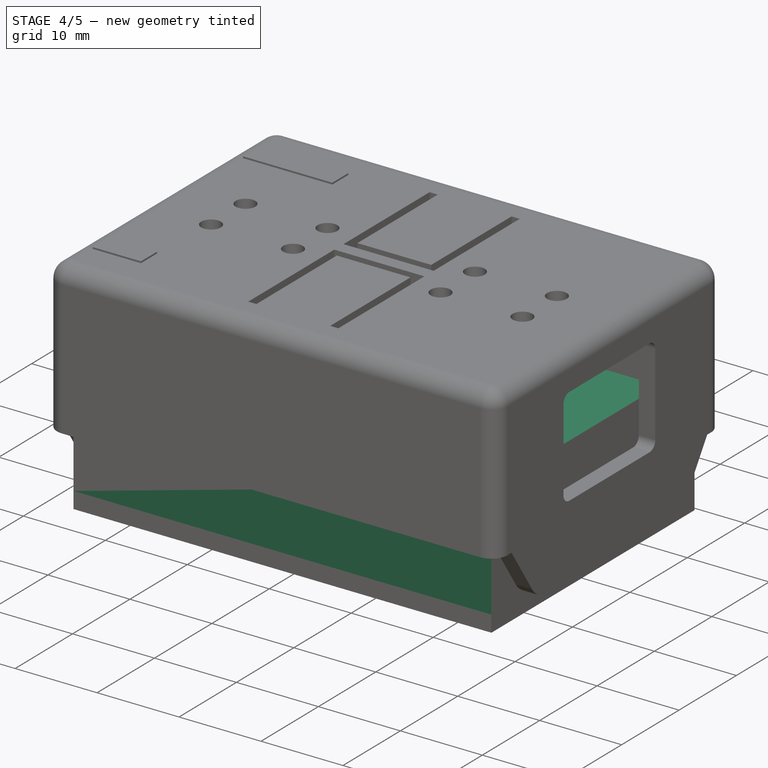
[diagram: stage 4 of 5 — iso view after this stage's code; geometry added in this stage tinted green]
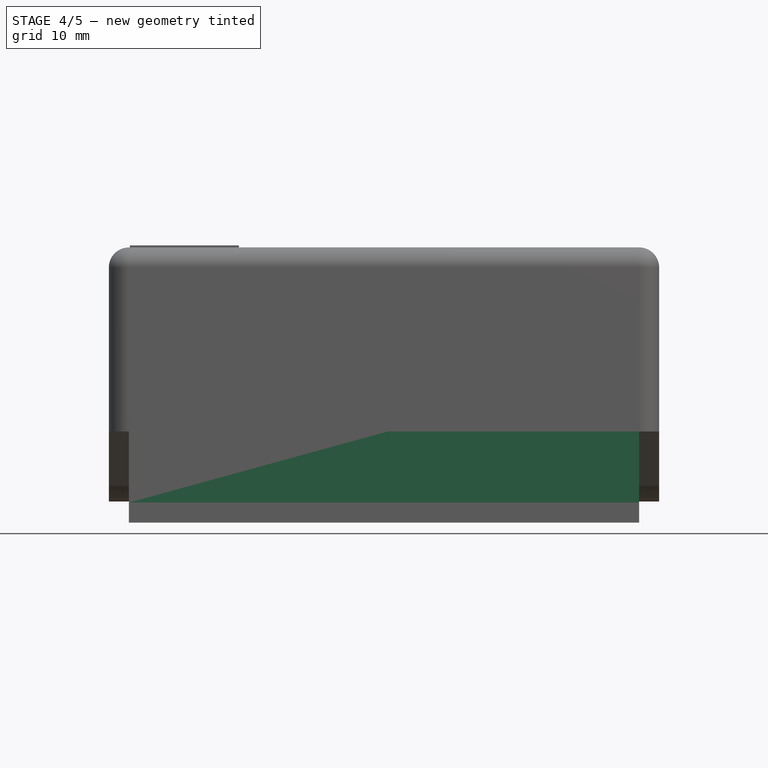
[diagram: stage 4 of 5 — front view after this stage's code; geometry added in this stage tinted green]
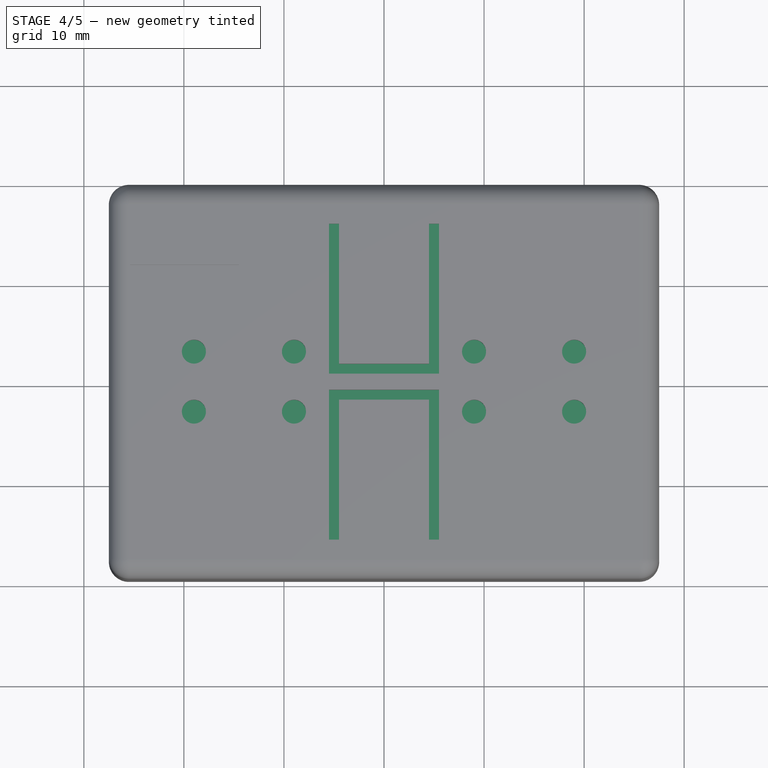
[diagram: stage 4 of 5 — top view after this stage's code; geometry added in this stage tinted green]
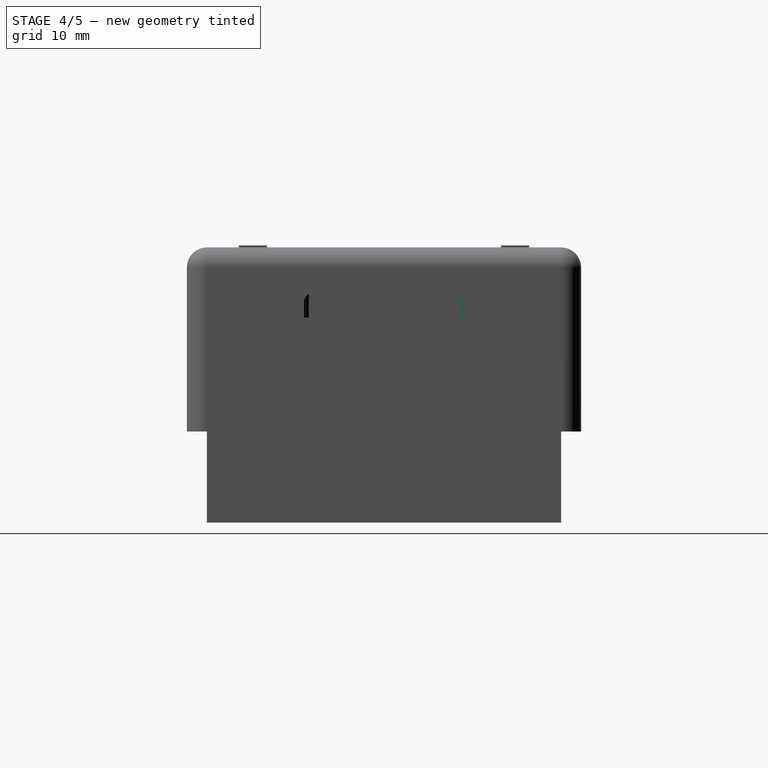
[diagram: stage 4 of 5 — right view after this stage's code; geometry added in this stage tinted green]
FEATURE [PartDesign::Body] Body  label="battery"
  Group = -> [Sketch,Pad]
  Origin = -> Origin
  Placement = pos=(0,0,0.3) rot=(0,0,1;0rad)
  Tip = -> Pad
FEATURE [Spreadsheet::Sheet] Spreadsheet  label="ss"
  cells = A2='Battery:; A3='battery_length; B3(battery_length)=50.6; A4='battery_width; B4(battery_width)=35; A5='battery_thickness; B5(battery_thickness)=6; A7='shell_bottom:; A8='shell_bottom_clearance; B8(shell_bottom_clearance)=0.2; A9='shell_bottom_length_inner; B9(shell_bottom_length_inner)==battery_length + shell_bottom_clearance * 2; A10='shell_bottom_width_inner; B10(shell_bottom_width_inner)==battery_width + shell_bottom_clearance * 2; A11='shell_bottom_walls_thickness; B11(shell_bottom_walls_thickness)=2; A12='shell_bottom_height; B12(shell_bottom_height)=14; A13='shell_bottom_w_sw_length; B13(shell_bottom_w_sw_length)=11.1; A14='shell_bottom_w_sw_height; B14(shell_bottom_w_sw_height)=5.9; A15='shell_lateral_keys_hpos_from_top; B15(shell_lateral_keys_hpos_from_top)=7; A17='shell top:; A18='shell_top_height; B18(shell_top_height)=23.5
FEATURE [Sketcher::SketchObject] Sketch001  label="shell_bottom_inner_sk"
  FullyConstrained = true
  MapMode = 5
  Support = -> [XY_Plane001]
  expr: Constraints[10] = Spreadsheet.shell_bottom_width_inner
  expr: Constraints[9] = Spreadsheet.shell_bottom_length_inner
  sketch-geometry (4):
    g0: LineSegment StartX=-25.5 StartY=17.7 StartZ=0 EndX=25.5 EndY=17.7 EndZ=0
    g1: LineSegment StartX=25.5 StartY=17.7 StartZ=0 EndX=25.5 EndY=-17.7 EndZ=0
    g2: LineSegment StartX=25.5 StartY=-17.7 StartZ=0 EndX=-25.5 EndY=-17.7 EndZ=0
    g3: LineSegment StartX=-25.5 StartY=-17.7 StartZ=0 EndX=-25.5 EndY=17.7 EndZ=0
  constraints (11):
    c: Coincident(g0,g1)
    c: Coincident(g1,g2)
    c: Coincident(g2,g3)
    c: Coincident(g3,g0)
    c: Horizontal(g0)
    c: Horizontal(g2)
    c: Vertical(g1)
    c: Vertical(g3)
    c: Symmetric(g1,g0,g-1)
    c: DistanceX(g0,g0) = 51
    c: DistanceY(g1,g1) = 35.4
FEATURE [PartDesign::Pad] Pad001  label="shell_bottom_inner_pad"
  Direction = (0,0,1)
  Length = 14
  Length2 = 10
  Profile = -> Sketch001
  ReferenceAxis = -> Sketch001 [N_Axis]
  Type = 0
  expr: Length = Spreadsheet.shell_bottom_height
FEATURE [Sketcher::SketchObject] Sketch022  label="blades_clearance_sk"
  FullyConstrained = true
  MapMode = 5
  Placement = pos=(0,0,0) rot=(0,1,0;3.14159rad)
  Support = -> [DatumPlane006]
  expr: Constraints[8] = <<ss>>.shell_bottom_length_inner / 2 - 1
  expr: Constraints[9] = <<ss>>.shell_bottom_width_inner / 2
  sketch-geometry (16):
    g0: LineSegment StartX=14.5 StartY=-17.55 StartZ=0 EndX=24.5 EndY=-17.55 EndZ=0
    g1: LineSegment StartX=24.5 StartY=-17.55 StartZ=0 EndX=24.5 EndY=-17.7 EndZ=0
    g2: LineSegment StartX=24.5 StartY=-17.7 StartZ=0 EndX=14.5 EndY=-17.7 EndZ=0
    g3: LineSegment StartX=14.5 StartY=-17.7 StartZ=0 EndX=14.5 EndY=-17.55 EndZ=0
    g4: LineSegment StartX=-14.5 StartY=-17.55 StartZ=0 EndX=-24.5 EndY=-17.55 EndZ=0
    g5: LineSegment StartX=-24.5 StartY=-17.55 StartZ=0 EndX=-24.5 EndY=-17.7 EndZ=0
    g6: LineSegment StartX=-24.5 StartY=-17.7 StartZ=0 EndX=-14.5 EndY=-17.7 EndZ=0
    g7: LineSegment StartX=-14.5 StartY=-17.7 StartZ=0 EndX=-14.5 EndY=-17.55 EndZ=0
    g8: LineSegment StartX=14.5 StartY=17.55 StartZ=0 EndX=24.5 EndY=17.55 EndZ=0
    g9: LineSegment StartX=24.5 StartY=17.55 StartZ=0 EndX=24.5 EndY=17.7 EndZ=0
    g10: LineSegment StartX=24.5 StartY=17.7 StartZ=0 EndX=14.5 EndY=17.7 EndZ=0
    g11: LineSegment StartX=14.5 StartY=17.7 StartZ=0 EndX=14.5 EndY=17.55 EndZ=0
    g12: LineSegment StartX=-14.5 StartY=17.55 StartZ=0 EndX=-24.5 EndY=17.55 EndZ=0
    g13: LineSegment StartX=-24.5 StartY=17.55 StartZ=0 EndX=-24.5 EndY=17.7 EndZ=0
    g14: LineSegment StartX=-24.5 StartY=17.7 StartZ=0 EndX=-14.5 EndY=17.7 EndZ=0
    g15: LineSegment StartX=-14.5 StartY=17.7 StartZ=0 EndX=-14.5 EndY=17.55 EndZ=0
  constraints (45):
    c: Coincident(g0,g1)
    c: Coincident(g1,g2)
    c: Coincident(g2,g3)
    c: Coincident(g3,g0)
    c: Horizontal(g0)
    c: Horizontal(g2)
    c: Vertical(g1)
    c: Vertical(g3)
    c: DistanceX(g-1,g1) = 24.5
    c: DistanceY(g1,g-1) = 17.7
    c: DistanceX(g2,g2) = 10
    c: DistanceY(g3,g3) = 0.15
    c: Coincident(g4,g5)
    c: Coincident(g5,g6)
    c: Coincident(g6,g7)
    c: Coincident(g7,g4)
    c: Horizontal(g4)
    c: Horizontal(g6)
    c: Vertical(g5)
    c: Vertical(g7)
    c: Coincident(g8,g9)
    c: Coincident(g9,g10)
    c: Coincident(g10,g11)
    c: Coincident(g11,g8)
    c: Horizontal(g8)
    c: Horizontal(g10)
    c: Vertical(g9)
    c: Vertical(g11)
    c: Coincident(g12,g13)
    c: Coincident(g13,g14)
    c: Coincident(g14,g15)
    c: Coincident(g15,g12)
    c: Horizontal(g12)
    c: Horizontal(g14)
    c: Vertical(g13)
    c: Vertical(g15)
    c: Symmetric(g1,g9,g-1)
    c: Symmetric(g9,g13,g-2)
    c: Equal(g11,g3)
    c: Equal(g10,g2)
    c: Equal(g2,g6)
    c: Equal(g6,g14)
    c: Equal(g3,g7)
    c: Equal(g7,g15)
    c: Symmetric(g5,g13,g-1)
FEATURE [PartDesign::Pocket] Pocket013  label="blades_clearance_pocket"
  BaseFeature = -> MultiTransform
  Direction = (0,0,1)
  Length = 7.1
  Length2 = 5
  Profile = -> Sketch022
  ReferenceAxis = -> Sketch022 [N_Axis]
  Type = 0
FEATURE [PartDesign::Pad] Pad005  label="boards_supports_pads"
  BaseFeature = -> Pocket013
  Direction = (0,0,1)
  Length = 5
  Length2 = 10
  Profile = -> Sketch013
  ReferenceAxis = -> Sketch013 [N_Axis]
  Reversed = true
  Type = 0
FEATURE [PartDesign::Pad] Pad006  label="bme688_support_pad"
  BaseFeature = -> Pad005
  Direction = (0,0,1)
  Length = 2.4
  Length2 = 10
  Profile = -> Sketch014
  ReferenceAxis = -> Sketch014 [N_Axis]
  Reversed = true
  Type = 0
FEATURE [PartDesign::Pocket] Pocket010  label="screw_pockets"
  BaseFeature = -> Pad006
  Direction = (0,1,-2e-16)
  Length = 5
  Length2 = 5
  Profile = -> Sketch019
  ReferenceAxis = -> Sketch019 [N_Axis]
  Type = 1
FEATURE [PartDesign::Fillet] Fillet001
  Base = -> Pocket010 [Edge37,Edge34]
  BaseFeature = -> Pocket010
  Radius = 1.85
  SupportTransform = false
  UseAllEdges = false
FEATURE [PartDesign::Fillet] Fillet002
  Base = -> Fillet001 [Edge13,Edge16]
  BaseFeature = -> Fillet001
  Radius = 1.5
  Refine = true
  SupportTransform = false
  UseAllEdges = false
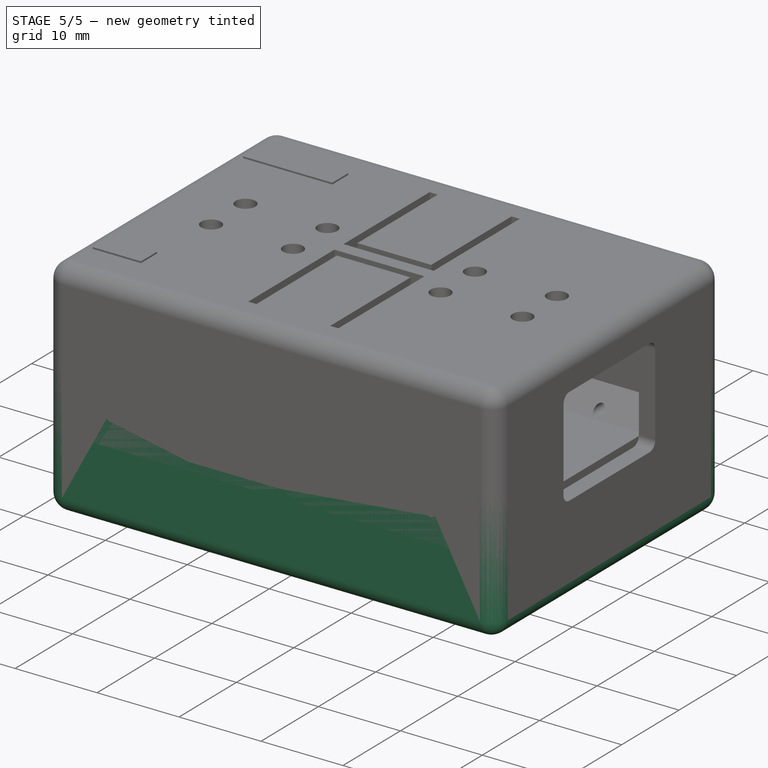
[diagram: stage 5 of 5 — iso view after this stage's code; geometry added in this stage tinted green]
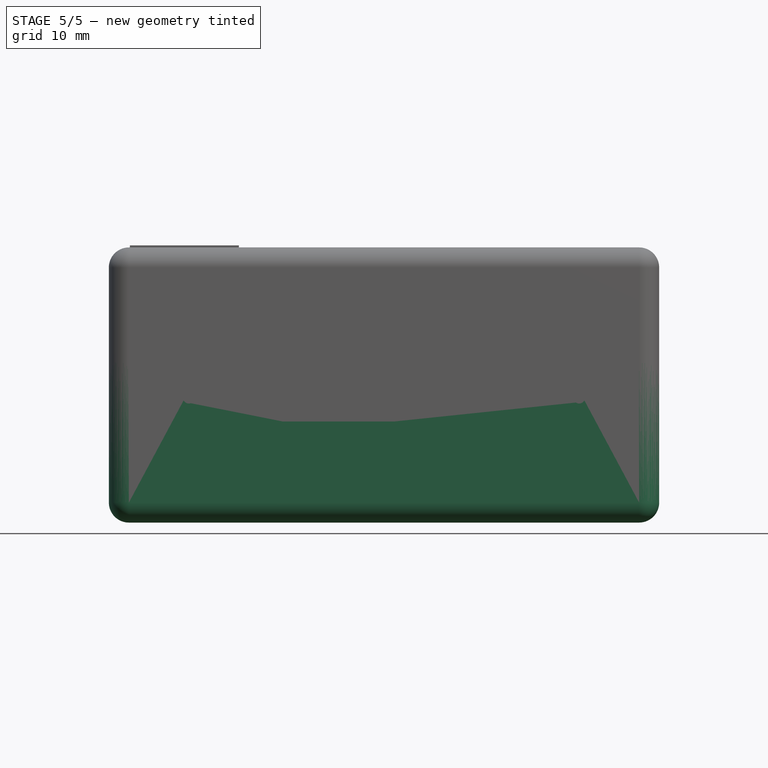
[diagram: stage 5 of 5 — front view after this stage's code; geometry added in this stage tinted green]
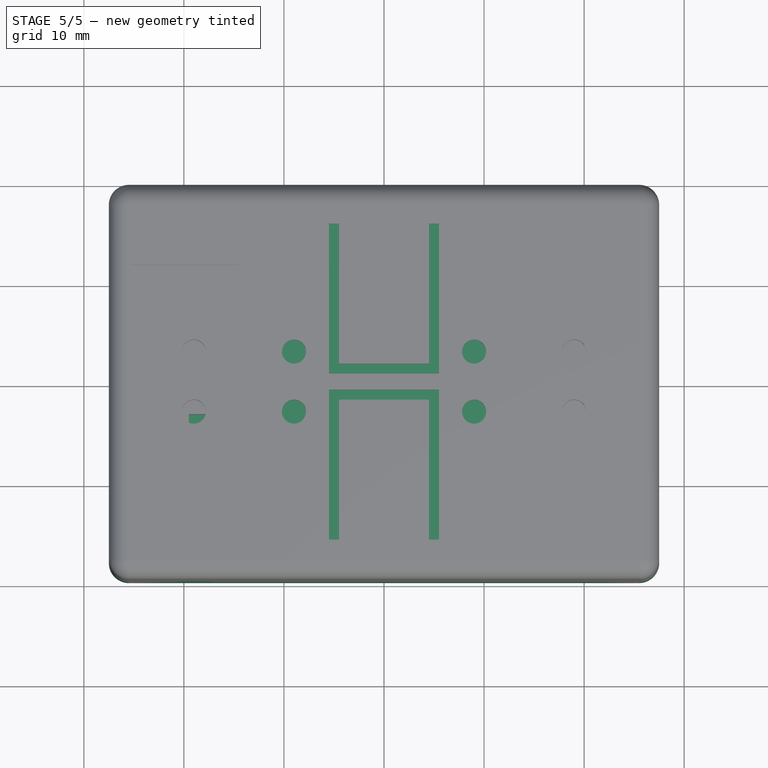
[diagram: stage 5 of 5 — top view after this stage's code; geometry added in this stage tinted green]
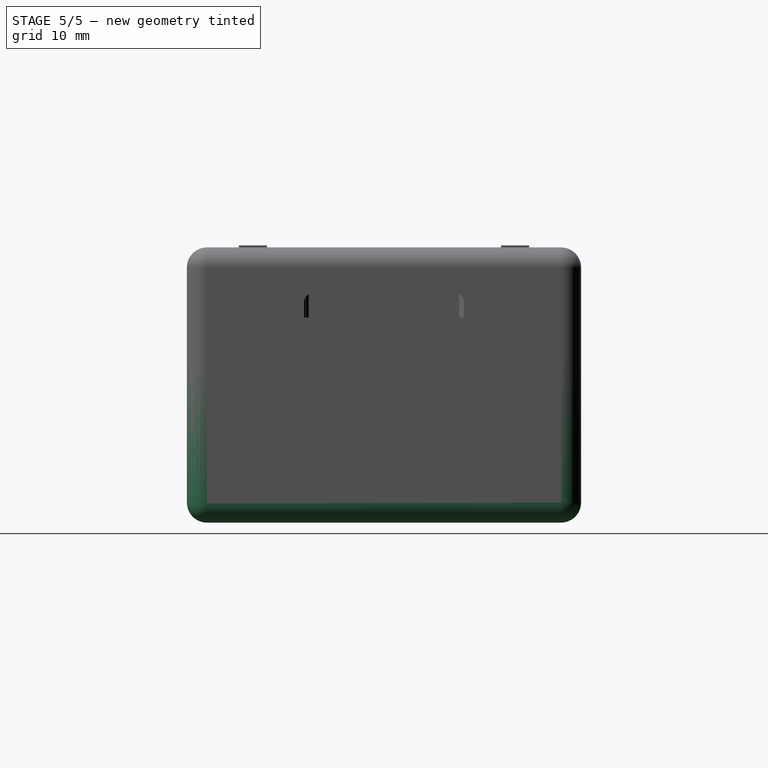
[diagram: stage 5 of 5 — right view after this stage's code; geometry added in this stage tinted green]
FEATURE [Sketcher::SketchObject] Sketch  label="battery_sk"
  FullyConstrained = true
  MapMode = 5
  Support = -> [XY_Plane]
  expr: Constraints[10] = <<ss>>.battery_width
  expr: Constraints[9] = <<ss>>.battery_length
  sketch-geometry (4):
    g0: LineSegment StartX=-25.3 StartY=17.5 StartZ=0 EndX=25.3 EndY=17.5 EndZ=0
    g1: LineSegment StartX=25.3 StartY=17.5 StartZ=0 EndX=25.3 EndY=-17.5 EndZ=0
    g2: LineSegment StartX=25.3 StartY=-17.5 StartZ=0 EndX=-25.3 EndY=-17.5 EndZ=0
    g3: LineSegment StartX=-25.3 StartY=-17.5 StartZ=0 EndX=-25.3 EndY=17.5 EndZ=0
  constraints (11):
    c: Coincident(g0,g1)
    c: Coincident(g1,g2)
    c: Coincident(g2,g3)
    c: Coincident(g3,g0)
    c: Horizontal(g0)
    c: Horizontal(g2)
    c: Vertical(g1)
    c: Vertical(g3)
    c: Symmetric(g1,g0,g-1)
    c: DistanceX(g0,g0) = 50.6
    c: DistanceY(g1,g1) = 35
FEATURE [PartDesign::Pad] Pad  label="battery_pad"
  Direction = (0,0,1)
  Length = 6
  Length2 = 10
  Profile = -> Sketch
  ReferenceAxis = -> Sketch [N_Axis]
  Type = 0
  expr: Length = <<ss>>.battery_thickness
FEATURE [PartDesign::Thickness] Thickness  label="shell_bottom_walls"
  Base = -> Pad001 [Face6]
  BaseFeature = -> Pad001
  Intersection = false
  Join = 0
  Mode = 1
  SupportTransform = false
  Value = 2
  expr: Value = Spreadsheet.shell_bottom_walls_thickness
FEATURE [PartDesign::CoordinateSystem] Local_CS  label="Local_CS_shell_bottom"
  AttacherType = Attacher::AttachEngine3D
  Support = -> [Origin001]
FEATURE [PartDesign::Plane] DatumPlane  label="DatumPlane_switch"
  AttachmentOffset = pos=(0,0,19.7) rot=(0,0,1;0rad)
  Length = 65.4881
  MapMode = 3
  Placement = pos=(0,-19.7,4.4e-15) rot=(1,0,0;1.5708rad)
  ResizeMode = 0
  Support = -> [Local_CS]
  Width = 60.4881
  expr: .AttachmentOffset.Base.z = <<ss>>.shell_bottom_width_inner / 2 + <<ss>>.shell_bottom_walls_thickness
FEATURE [Sketcher::SketchObject] Sketch002  label="window_switch_sk"
  FullyConstrained = true
  MapMode = 5
  Placement = pos=(0,-19.7,4.4e-15) rot=(1,0,0;1.5708rad)
  Support = -> [DatumPlane]
  expr: Constraints[10] = <<ss>>.shell_bottom_height
  expr: Constraints[8] = <<ss>>.shell_bottom_w_sw_length
  expr: Constraints[9] = <<ss>>.shell_bottom_w_sw_height
  sketch-geometry (4):
    g0: LineSegment StartX=-10.1 StartY=14 StartZ=0 EndX=1 EndY=14 EndZ=0
    g1: LineSegment StartX=1 StartY=14 StartZ=0 EndX=1 EndY=8.1 EndZ=0
    g2: LineSegment StartX=1 StartY=8.1 StartZ=0 EndX=-10.1 EndY=8.1 EndZ=0
    g3: LineSegment StartX=-10.1 StartY=8.1 StartZ=0 EndX=-10.1 EndY=14 EndZ=0
  constraints (12):
    c: Coincident(g0,g1)
    c: Coincident(g1,g2)
    c: Coincident(g2,g3)
    c: Coincident(g3,g0)
    c: Horizontal(g0)
    c: Horizontal(g2)
    c: Vertical(g1)
    c: Vertical(g3)
    c: DistanceX(g0,g0) = 11.1
    c: DistanceY(g1,g1) = 5.9
    c: DistanceY(g-1,g0) = 14
    c: DistanceX(g-1,g1) = 1
FEATURE [PartDesign::Pocket] Pocket  label="window_switch"
  BaseFeature = -> Thickness
  Direction = (0,1,-2e-16)
  Length = 5
  Length2 = 5
  Profile = -> Sketch002
  ReferenceAxis = -> Sketch002 [N_Axis]
  Type = 2
FEATURE [PartDesign::Plane] DatumPlane001  label="DatumPlane_lateral_keys"
  AttachmentOffset = pos=(0,0,27.5) rot=(0,0,1;0rad)
  Length = 60
  MapMode = 4
  Placement = pos=(27.5,0,0) rot=(0.57735,0.57735,0.57735;2.0944rad)
  ResizeMode = 0
  Support = -> [Local_CS]
  Width = 60
  expr: .AttachmentOffset.Base.z = <<ss>>.shell_bottom_length_inner / 2 + <<ss>>.shell_bottom_walls_thickness
FEATURE [Sketcher::SketchObject] Sketch003  label="shell_lateral_keys_windows_sk"
  FullyConstrained = true
  MapMode = 5
  Placement = pos=(27.5,0,0) rot=(0.57735,0.57735,0.57735;2.0944rad)
  Support = -> [DatumPlane001]
  expr: Constraints[25] = <<ss>>.shell_bottom_height - <<ss>>.shell_lateral_keys_hpos_from_top
  sketch-geometry (12):
    g0: LineSegment StartX=-15 StartY=22 StartZ=0 EndX=15 EndY=22 EndZ=0
    g1: LineSegment StartX=18.3327 StartY=15.788 StartZ=0 EndX=13.6867 EndY=8.78801 EndZ=0
    g2: LineSegment StartX=10.354 StartY=7 StartZ=0 EndX=-10.354 EndY=7 EndZ=0
    g3: LineSegment StartX=-13.6867 StartY=8.78801 StartZ=0 EndX=-18.3327 EndY=15.788 EndZ=0
    g4: ArcOfCircle CenterX=-15 CenterY=18 CenterZ=0 NormalX=0 NormalY=0 NormalZ=1 AngleXU=0 Radius=4 StartAngle=1.5708 EndAngle=3.72755
    g5: GeomPoint X=-22.4557 Y=22 Z=0
    g6: ArcOfCircle CenterX=15 CenterY=18 CenterZ=0 NormalX=0 NormalY=0 NormalZ=1 AngleXU=0 Radius=4 StartAngle=5.69723 EndAngle=7.85398
    g7: GeomPoint X=22.4557 Y=22 Z=0
    g8: ArcOfCircle CenterX=10.354 CenterY=11 CenterZ=0 NormalX=0 NormalY=0 NormalZ=1 AngleXU=0 Radius=4 StartAngle=4.71239 EndAngle=5.69723
    g9: GeomPoint X=12.5 Y=7 Z=0
    g10: ArcOfCircle CenterX=-10.354 CenterY=11 CenterZ=0 NormalX=0 NormalY=0 NormalZ=1 AngleXU=0 Radius=4 StartAngle=3.72755 EndAngle=4.71239
    g11: GeomPoint X=-12.5 Y=7 Z=0
  constraints (26):
    c: Symmetric(g7,g5,g-2)
    c: PointOnObject(g5,g0)
    c: PointOnObject(g5,g3)
    c: Tangent(g0,g4) = 1.5708
    c: Tangent(g3,g4) = 1.5708
    c: PointOnObject(g7,g0)
    c: PointOnObject(g7,g1)
    c: Tangent(g0,g6) = 1.5708
    c: Tangent(g1,g6) = 1.5708
    c: PointOnObject(g9,g1)
    c: PointOnObject(g9,g2)
    c: Tangent(g1,g8) = 1.5708
    c: Tangent(g2,g8) = 1.5708
    c: PointOnObject(g11,g3)
    c: PointOnObject(g11,g2)
    c: Tangent(g3,g10) = 1.5708
    c: Tangent(g2,g10) = 1.5708
    c: Symmetric(g9,g11,g-2)
    c: DistanceY(g9,g7) = 15
    c: Equal(g10,g8)
    c: Equal(g8,g6)
    c: Equal(g6,g4)
    c: Radius(g4) = 4
    c: DistanceX(g11,g9) = 25
    c: DistanceX(g4,g6) = 30
    c: DistanceY(g-1,g11) = 7
FEATURE [PartDesign::Pocket] Pocket001  label="shell_lateral_keys_windows_hole"
  BaseFeature = -> Pocket
  Direction = (-1,0,0)
  Length = 5
  Length2 = 5
  Profile = -> Sketch003
  ReferenceAxis = -> Sketch003 [N_Axis]
  Type = 1
FEATURE [Part::Feature] Part__Feature  label="Board"
  shape: bbox 50.8 x 22.86 x 1.57 mm, 162 faces (baked)
FEATURE [Part::Feature] Part__Feature001  label="0805-NO"
  Placement = pos=(18.918,18.883,1.57) rot=(0,0,1;3.14159rad)
  shape: bbox 2 x 1.25 x 1 mm, 14 faces (baked)
FEATURE [Part::Feature] Part__Feature002  label="0805-NO001"
  Placement = pos=(14.366,12.894,1.57) rot=(0,0,-1;1.5708rad)
  shape: bbox 1.25 x 2 x 1 mm, 14 faces (baked)
FEATURE [Part::Feature] Part__Feature003  label="0805-NO002"
  Placement = pos=(16.129,18.034,1.57) rot=(0,0,-1;1.5708rad)
  shape: bbox 1.25 x 2 x 1 mm, 14 faces (baked)
FEATURE [Part::Feature] Part__Feature004  label="0805-NO003"
  Placement = pos=(22.416,18.542,1.57) rot=(0,0,1;3.14159rad)
  shape: bbox 2 x 1.25 x 1 mm, 14 faces (baked)
FEATURE [Part::Feature] Part__Feature005  label="0805-NO004"
  Placement = pos=(11.684,4.902,1.57) rot=(0,0,-1;1.5708rad)
  shape: bbox 1.25 x 2 x 1 mm, 14 faces (baked)
FEATURE [Part::Feature] Part__Feature006  label="0603-NO"
  Placement = pos=(13.191,4.775,1.57) rot=(0,0,-1;1.5708rad)
  shape: bbox 0.9 x 1.6 x 0.8 mm, 14 faces (baked)
FEATURE [Part::Feature] Part__Feature007  label="0603-NO001"
  Placement = pos=(5.969,4.191,1.57) rot=(0,0,1;0rad)
  shape: bbox 1.6 x 0.9 x 0.8 mm, 14 faces (baked)
FEATURE [Part::Feature] Part__Feature008  label="0603-NO002"
  Placement = pos=(5.588,21.082,1.57) rot=(0,0,-1;1.5708rad)
  shape: bbox 0.9 x 1.6 x 0.8 mm, 14 faces (baked)
FEATURE [Part::Feature] Part__Feature009  label="0603-NO003"
  Placement = pos=(19.05,17.336,1.57) rot=(0,0,1;0rad)
  shape: bbox 1.6 x 0.9 x 0.8 mm, 14 faces (baked)
FEATURE [Part::Feature] Part__Feature010  label="0603-NO004"
  Placement = pos=(7.493,13.716,1.57) rot=(0,0,1;0rad)
  shape: bbox 1.6 x 0.9 x 0.8 mm, 14 faces (baked)
FEATURE [Part::Feature] Part__Feature011  label="0603-NO005"
  Placement = pos=(22.606,15.748,1.57) rot=(0,0,1;3.14159rad)
  shape: bbox 1.6 x 0.9 x 0.8 mm, 14 faces (baked)
FEATURE [Part::Feature] Part__Feature012  label="0603-NO006"
  Placement = pos=(22.606,17.018,1.57) rot=(0,0,1;0rad)
  shape: bbox 1.6 x 0.9 x 0.8 mm, 14 faces (baked)
FEATURE [Part::Feature] Part__Feature013  label="0603-NO007"
  Placement = pos=(6.858,7.493,1.57) rot=(0,0,-1;1.5708rad)
  shape: bbox 0.9 x 1.6 x 0.8 mm, 14 faces (baked)
FEATURE [Part::Feature] Part__Feature014  label="0603-NO008"
  Placement = pos=(22.733,14.478,1.57) rot=(0,0,1;3.14159rad)
  shape: bbox 1.6 x 0.9 x 0.8 mm, 14 faces (baked)
FEATURE [Part::Feature] Part__Feature015  label="SOT23-5"
  Placement = pos=(17.907,14.859,1.57) rot=(0,0,1;1.5708rad)
  shape: bbox 3 x 3 x 1.4 mm, 75 faces (baked)
FEATURE [Part::Feature] Part__Feature016  label="SOT23-006"
  Placement = pos=(17.907,11.557,1.57) rot=(0,0,-1;1.5708rad)
  shape: bbox 3 x 3 x 1.4 mm, 75 faces (baked)
FEATURE [Part::Feature] Part__Feature017  label="SOD-123"
  Placement = pos=(9.779,12.192,1.57) rot=(0,0,1;3.14159rad)
  shape: bbox 3.6 x 1.4 x 1.35 mm, 32 faces (baked)
FEATURE [Part::Feature] Part__Feature018  label="JSTPH2"
  Placement = pos=(10.795,19.304,1.57) rot=(0,0,1;0rad)
  shape: bbox 0.5 x 3.3 x 2 mm, 6 faces (baked)
FEATURE [Part::Feature] Part__Feature019  label="JSTPH003"
  Placement = pos=(10.795,19.304,1.57) rot=(0,0,1;0rad)
  shape: bbox 0.5 x 8.2 x 3.35 mm, 22 faces (baked)
FEATURE [Part::Feature] Part__Feature020  label="JSTPH004"
  Placement = pos=(10.795,19.304,1.57) rot=(0,0,1;0rad)
  shape: bbox 7.9 x 7.6 x 4.8 mm, 70 faces (baked)
FEATURE [Part::Feature] Part__Feature021  label="JSTPH005"
  Placement = pos=(10.795,19.304,1.57) rot=(0,0,1;0rad)
  shape: bbox 0.5 x 8.2 x 3.35 mm, 22 faces (baked)
FEATURE [Part::Feature] Part__Feature022  label="JSTPH006"
  Placement = pos=(10.795,19.304,1.57) rot=(0,0,1;0rad)
  shape: bbox 0.5 x 3.3 x 2 mm, 6 faces (baked)
FEATURE [App::Part] JSTPH2  label="JSTPH007"
  Group = -> [Part__Feature018,Part__Feature019,Part__Feature020,Part__Feature021,Part__Feature022]
  Origin = -> Origin003
FEATURE [Part::Feature] Part__Feature023  label="CHIPLED_0805_NOOUTLINE"
  Placement = pos=(2.413,5.588,1.57) rot=(0,0,-1;1.5708rad)
  shape: bbox 2.02 x 1.25 x 1.1 mm, 52 faces (baked)
FEATURE [Part::Feature] Part__Feature024  label="CHIPLED_0805_NOOUTLINE001"
  Placement = pos=(2.858,17.336,1.57) rot=(0,0,1;1.5708rad)
  shape: bbox 2.02 x 1.25 x 1.1 mm, 52 faces (baked)
FEATURE [Part::Feature] Part__Feature025  label="BTN_KMR2_4.6X2.8"
  Placement = pos=(9.144,6.223,1.57) rot=(0,0,-1;1.5708rad)
  shape: bbox 2.809 x 4.609 x 1.949 mm, 256 faces (baked)
FEATURE [Part::Feature] Part__Feature026  label="QFN24_4MM_SMSC"
  Placement = pos=(16.891,6.477,1.57) rot=(0,0,1;0rad)
  shape: bbox 0.25 x 0.501 x 0.2001 mm, 10 faces (baked)
FEATURE [Part::Feature] Part__Feature027  label="QFN24_4MM_SMSC001"
  Placement = pos=(16.891,6.477,1.57) rot=(0,0,1;0rad)
  shape: bbox 0.25 x 0.501 x 0.2001 mm, 10 faces (baked)
FEATURE [Part::Feature] Part__Feature028  label="QFN24_4MM_SMSC002"
  Placement = pos=(16.891,6.477,1.57) rot=(0,0,1;0rad)
  shape: bbox 0.25 x 0.501 x 0.2001 mm, 10 faces (baked)
FEATURE [Part::Feature] Part__Feature029  label="QFN24_4MM_SMSC003"
  Placement = pos=(16.891,6.477,1.57) rot=(0,0,1;0rad)
  shape: bbox 0.25 x 0.501 x 0.2001 mm, 10 faces (baked)
FEATURE [Part::Feature] Part__Feature030  label="QFN24_4MM_SMSC004"
  Placement = pos=(16.891,6.477,1.57) rot=(0,0,1;0rad)
  shape: bbox 0.25 x 0.501 x 0.2001 mm, 10 faces (baked)
FEATURE [Part::Feature] Part__Feature031  label="QFN24_4MM_SMSC005"
  Placement = pos=(16.891,6.477,1.57) rot=(0,0,1;0rad)
  shape: bbox 0.25 x 0.501 x 0.2001 mm, 10 faces (baked)
FEATURE [Part::Feature] Part__Feature032  label="QFN24_4MM_SMSC006"
  Placement = pos=(16.891,6.477,1.57) rot=(0,0,1;0rad)
  shape: bbox 0.501 x 0.25 x 0.2001 mm, 10 faces (baked)
FEATURE [Part::Feature] Part__Feature033  label="QFN24_4MM_SMSC007"
  Placement = pos=(16.891,6.477,1.57) rot=(0,0,1;0rad)
  shape: bbox 0.501 x 0.25 x 0.2001 mm, 10 faces (baked)
FEATURE [Part::Feature] Part__Feature034  label="QFN24_4MM_SMSC008"
  Placement = pos=(16.891,6.477,1.57) rot=(0,0,1;0rad)
  shape: bbox 0.501 x 0.25 x 0.2001 mm, 10 faces (baked)
FEATURE [Part::Feature] Part__Feature035  label="QFN24_4MM_SMSC009"
  Placement = pos=(16.891,6.477,1.57) rot=(0,0,1;0rad)
  shape: bbox 0.501 x 0.25 x 0.2001 mm, 10 faces (baked)
FEATURE [Part::Feature] Part__Feature036  label="QFN24_4MM_SMSC010"
  Placement = pos=(16.891,6.477,1.57) rot=(0,0,1;0rad)
  shape: bbox 0.501 x 0.25 x 0.2001 mm, 10 faces (baked)
FEATURE [Part::Feature] Part__Feature037  label="QFN24_4MM_SMSC011"
  Placement = pos=(16.891,6.477,1.57) rot=(0,0,1;0rad)
  shape: bbox 0.501 x 0.25 x 0.2001 mm, 10 faces (baked)
FEATURE [Part::Feature] Part__Feature038  label="QFN24_4MM_SMSC012"
  Placement = pos=(16.891,6.477,1.57) rot=(0,0,1;0rad)
  shape: bbox 3.999 x 3.999 x 1 mm, 130 faces (baked)
FEATURE [App::Part] QFN24_4MM_SMSC  label="QFN24_4MM_SMSC013"
  Group = -> [Part__Feature026,Part__Feature027,Part__Feature028,Part__Feature029,Part__Feature030,Part__Feature031,Part__Feature032,Part__Feature033,Part__Feature034,Part__Feature035,Part__Feature036,Part__Feature037,Part__Feature038]
  Origin = -> Origin004
FEATURE [Part::Feature] Part__Feature039  label="4UCONN_20329_V2"
  Placement = pos=(4.445,11.43,1.57) rot=(0,0,-1;1.5708rad)
  shape: bbox 5.6 x 8.8 x 3 mm, 277 faces (baked)
FEATURE [Part::Feature] Part__Feature040  label="SOT23-3"
  Placement = pos=(22.758,12.256,1.57) rot=(0,0,1;3.14159rad)
  shape: bbox 3.04 x 2.64 x 1.12 mm, 56 faces (baked)
FEATURE [Part::Feature] Part__Feature041  label="SOT23-007"
  Placement = pos=(22.479,5.969,1.57) rot=(0,0,1;0rad)
  shape: bbox 3.04 x 2.64 x 1.12 mm, 56 faces (baked)
FEATURE [Part::Feature] Part__Feature042  label="WROOM32_SKINNY"
  Placement = pos=(38.354,11.43,1.57) rot=(0,0,-1;1.5708rad)
  shape: bbox 25.5 x 18 x 0.83 mm, 263 faces (baked)
FEATURE [Part::Feature] Part__Feature043  label="WROOM32_SKINNY001"
  Placement = pos=(38.354,11.43,1.57) rot=(0,0,-1;1.5708rad)
  shape: bbox 17.6 x 15.8 x 2.6 mm, 11 faces (baked)
FEATURE [App::Part] WROOM32_SKINNY  label="WROOM32_SKINNY002"
  Group = -> [Part__Feature042,Part__Feature043]
  Origin = -> Origin005
FEATURE [Part::Feature] Part__Feature044  label="SOT23-R"
  Placement = pos=(12.954,10.414,1.57) rot=(0,0,1;0rad)
  shape: bbox 3.04 x 2.64 x 1.12 mm, 56 faces (baked)
FEATURE [Part::Feature] Part__Feature045  label="RESPACK_4X0603"
  Placement = pos=(22.542,9.144,1.57) rot=(0,0,1;0rad)
  shape: bbox 3.05 x 1.6 x 0.5 mm, 62 faces (baked)
FEATURE [App::Part] PCB_Component  label="PCB Component"
  Group = -> [Part__Feature,Part__Feature001,Part__Feature002,Part__Feature003,Part__Feature004,Part__Feature005,Part__Feature006,Part__Feature007,Part__Feature008,Part__Feature009,Part__Feature010,Part__Feature011,Part__Feature012,Part__Feature013,Part__Feature014,Part__Feature015,Part__Feature016,Part__Feature017,JSTPH2,Part__Feature023,Part__Feature024,Part__Feature025,QFN24_4MM_SMSC,Part__Feature039,+5 more]
  Origin = -> Origin006
FEATURE [App::Part] Adafruit_HUZZAH32_ESP32_Feather_v3  label="Adafruit HUZZAH32 ESP32 Feather v3"
  Group = -> [PCB_Component]
  Origin = -> Origin007
  Placement = pos=(-25.4,11.43,15) rot=(1,0,0;3.14159rad)
FEATURE [PartDesign::Plane] DatumPlane002  label="DatumPlane_lateral_keys_shell_top"
  AttachmentOffset = pos=(0,0,27.5) rot=(0,0,1;0rad)
  Length = 60.0499
  MapMode = 4
  Placement = pos=(27.5,0,0) rot=(0.57735,0.57735,0.57735;2.0944rad)
  ResizeMode = 0
  Support = -> [Local_CS001]
  Width = 60.5499
  expr: .AttachmentOffset.Base.z = <<ss>>.shell_bottom_length_inner / 2 + <<ss>>.shell_bottom_walls_thickness
FEATURE [Part::Feature] Part__Feature046  label="Board001"
  shape: bbox 50.8 x 22.86 x 1.57 mm, 178 faces (baked)
FEATURE [App::Part] PCB_Component001  label="PCB Component001"
  Group = -> [Part__Feature046]
  Origin = -> Origin008
FEATURE [App::Part] Proto_FeatherWing_v2  label="Proto FeatherWing v2"
  Group = -> [PCB_Component001]
  Origin = -> Origin009
  Placement = pos=(-25.4,-11.43,25.76) rot=(0,0,1;0rad)
FEATURE [PartDesign::Plane] DatumPlane003  label="DatumPlane_usb_port"
  AttachmentOffset = pos=(0,0,-27.5) rot=(0,0,1;0rad)
  Length = 60.0499
  MapMode = 4
  Placement = pos=(-27.5,0,0) rot=(0.57735,0.57735,0.57735;2.0944rad)
  ResizeMode = 0
  Support = -> [Local_CS001]
  Width = 60.5499
  expr: .AttachmentOffset.Base.z = -<<ss>>.shell_bottom_length_inner / 2 - <<ss>>.shell_bottom_walls_thickness
FEATURE [Sketcher::SketchObject] Sketch006  label="usb_window_sk"
  FullyConstrained = true
  MapMode = 5
  Placement = pos=(-27.5,0,0) rot=(0.57735,0.57735,0.57735;2.0944rad)
  Support = -> [DatumPlane003]
  sketch-geometry (10):
    g0: ArcOfCircle CenterX=5.4 CenterY=6.5 CenterZ=0 NormalX=0 NormalY=0 NormalZ=1 AngleXU=0 Radius=1 StartAngle=0 EndAngle=1.5708
    g1: LineSegment StartX=6.4 StartY=6.5 StartZ=0 EndX=6.4 EndY=3.5 EndZ=0
    g2: ArcOfCircle CenterX=5.4 CenterY=3.5 CenterZ=0 NormalX=0 NormalY=0 NormalZ=1 AngleXU=0 Radius=1 StartAngle=4.71239 EndAngle=6.28319
    g3: LineSegment StartX=5.4 StartY=2.5 StartZ=0 EndX=-5.4 EndY=2.5 EndZ=0
    g4: ArcOfCircle CenterX=-5.4 CenterY=3.5 CenterZ=0 NormalX=0 NormalY=0 NormalZ=1 AngleXU=0 Radius=1 StartAngle=3.14159 EndAngle=4.71239
    g5: LineSegment StartX=-6.4 StartY=3.5 StartZ=0 EndX=-6.4 EndY=6.5 EndZ=0
    g6: ArcOfCircle CenterX=-5.4 CenterY=6.5 CenterZ=0 NormalX=0 NormalY=0 NormalZ=1 AngleXU=0 Radius=1 StartAngle=1.5708 EndAngle=3.14159
    g7: LineSegment StartX=-5.4 StartY=7.5 StartZ=0 EndX=5.4 EndY=7.5 EndZ=0
    g8: GeomPoint X=6.4 Y=7.5 Z=0
    g9: GeomPoint X=-6.4 Y=2.5 Z=0
  constraints (23):
    c: Tangent(g0,g1) = 1.5708
    c: Tangent(g1,g2) = 1.5708
    c: Tangent(g2,g3) = 1.5708
    c: Tangent(g3,g4) = 1.5708
    c: Tangent(g4,g5) = 1.5708
    c: Tangent(g5,g6) = 1.5708
    c: Tangent(g6,g7) = 1.5708
    c: Tangent(g7,g0) = 1.5708
    c: Horizontal(g3)
    c: Vertical(g1)
    c: Vertical(g5)
    c: Equal(g0,g2)
    c: Equal(g2,g4)
    c: Equal(g4,g6)
    c: PointOnObject(g8,g1)
    c: PointOnObject(g8,g7)
    c: PointOnObject(g9,g3)
    c: PointOnObject(g9,g5)
    c: Symmetric(g6,g0,g-2)
    c: DistanceY(g-1,g2) = 2.5
    c: DistanceY(g2,g0) = 5
    c: Radius(g2) = 1
    c: DistanceX(g5,g0) = 12.8
FEATURE [Sketcher::SketchObject] Sketch007  label="sdcard_window_sk"
  FullyConstrained = true
  MapMode = 5
  Placement = pos=(27.5,0,0) rot=(0.57735,0.57735,0.57735;2.0944rad)
  Support = -> [DatumPlane002]
  sketch-geometry (10):
    g0: ArcOfCircle CenterX=-7 CenterY=20 CenterZ=0 NormalX=0 NormalY=0 NormalZ=1 AngleXU=0 Radius=1 StartAngle=1.5708 EndAngle=3.14159
    g1: LineSegment StartX=-7 StartY=21 StartZ=0 EndX=7 EndY=21 EndZ=0
    g2: ArcOfCircle CenterX=7 CenterY=20 CenterZ=0 NormalX=0 NormalY=0 NormalZ=1 AngleXU=0 Radius=1 StartAngle=-9e-16 EndAngle=1.5708
    g3: LineSegment StartX=8 StartY=20 StartZ=0 EndX=8 EndY=10 EndZ=0
    g4: ArcOfCircle CenterX=7 CenterY=10 CenterZ=0 NormalX=0 NormalY=0 NormalZ=1 AngleXU=0 Radius=1 StartAngle=4.71239 EndAngle=6.28319
    g5: LineSegment StartX=7 StartY=9 StartZ=0 EndX=-7 EndY=9 EndZ=0
    g6: ArcOfCircle CenterX=-7 CenterY=10 CenterZ=0 NormalX=0 NormalY=0 NormalZ=1 AngleXU=0 Radius=1 StartAngle=3.14159 EndAngle=4.71239
    g7: LineSegment StartX=-8 StartY=10 StartZ=0 EndX=-8 EndY=20 EndZ=0
    g8: GeomPoint X=-8 Y=21 Z=0
    g9: GeomPoint X=8 Y=9 Z=0
  constraints (23):
    c: Tangent(g0,g1) = 1.5708
    c: Tangent(g1,g2) = 1.5708
    c: Tangent(g2,g3) = 1.5708
    c: Tangent(g3,g4) = 1.5708
    c: Tangent(g4,g5) = 1.5708
    c: Tangent(g5,g6) = 1.5708
    c: Tangent(g6,g7) = 1.5708
    c: Tangent(g7,g0) = 1.5708
    c: Horizontal(g5)
    c: Vertical(g3)
    c: Vertical(g7)
    c: Equal(g0,g2)
    c: Equal(g2,g4)
    c: Equal(g4,g6)
    c: PointOnObject(g8,g1)
    c: PointOnObject(g8,g7)
    c: PointOnObject(g9,g3)
    c: PointOnObject(g9,g5)
    c: DistanceY(g4,g1) = 12
    c: DistanceX(g0,g2) = 16
    c: Symmetric(g2,g0,g-2)
    c: DistanceY(g-1,g4) = 9
    c: Radius(g6) = 1
FEATURE [PartDesign::Plane] DatumPlane004  label="DatumPlane_top_buttons"
  AttachmentOffset = pos=(0,0,25.5) rot=(0,0,1;0rad)
  Length = 65.4881
  MapMode = 2
  Placement = pos=(0,0,25.5) rot=(0,0,1;0rad)
  ResizeMode = 0
  Support = -> [Local_CS001]
  Width = 60.4881
  expr: .AttachmentOffset.Base.z = <<ss>>.shell_top_height + <<ss>>.shell_bottom_walls_thickness
FEATURE [Sketcher::SketchObject] Sketch008  label="buttons_cutout_sk"
  FullyConstrained = true
  MapMode = 5
  Placement = pos=(0,0,25.5) rot=(0,0,1;0rad)
  Support = -> [DatumPlane004]
  sketch-geometry (22):
    g0: LineSegment StartX=-5.5 StartY=15.8 StartZ=0 EndX=-4.5 EndY=15.8 EndZ=0
    g1: LineSegment StartX=-4.5 StartY=15.8 StartZ=0 EndX=-4.5 EndY=1.8 EndZ=0
    g2: LineSegment StartX=-4.5 StartY=1.8 StartZ=0 EndX=4.5 EndY=1.8 EndZ=0
    g3: LineSegment StartX=4.5 StartY=1.8 StartZ=0 EndX=4.5 EndY=15.8 EndZ=0
    g4: LineSegment StartX=4.5 StartY=15.8 StartZ=0 EndX=5.5 EndY=15.8 EndZ=0
    g5: LineSegment StartX=5.5 StartY=15.8 StartZ=0 EndX=5.5 EndY=0.8 EndZ=0
    g6: LineSegment StartX=5.5 StartY=0.8 StartZ=0 EndX=-5.5 EndY=0.8 EndZ=0
    g7: LineSegment StartX=-5.5 StartY=0.8 StartZ=0 EndX=-5.5 EndY=15.8 EndZ=0
    g8: LineSegment StartX=4.5 StartY=1.8 StartZ=0 EndX=4.5 EndY=0.8 EndZ=0
    g9: LineSegment StartX=0 StartY=1.8 StartZ=0 EndX=0 EndY=3 EndZ=0
    g10: LineSegment StartX=0 StartY=3 StartZ=0 EndX=4.5 EndY=1.8 EndZ=0
    g11: LineSegment StartX=0 StartY=3 StartZ=0 EndX=-4.5 EndY=1.8 EndZ=0
    g12: LineSegment StartX=-5.5 StartY=-0.8 StartZ=0 EndX=5.5 EndY=-0.8 EndZ=0
    g13: LineSegment StartX=5.5 StartY=-0.8 StartZ=0 EndX=5.5 EndY=-15.8 EndZ=0
    g14: LineSegment StartX=5.5 StartY=-15.8 StartZ=0 EndX=4.5 EndY=-15.8 EndZ=0
    g15: LineSegment StartX=4.5 StartY=-15.8 StartZ=0 EndX=4.5 EndY=-1.8 EndZ=0
    g16: LineSegment StartX=4.5 StartY=-1.8 StartZ=0 EndX=-4.5 EndY=-1.8 EndZ=0
    g17: LineSegment StartX=-4.5 StartY=-1.8 StartZ=0 EndX=-4.5 EndY=-15.8 EndZ=0
    g18: LineSegment StartX=-4.5 StartY=-15.8 StartZ=0 EndX=-5.5 EndY=-15.8 EndZ=0
    g19: LineSegment StartX=-5.5 StartY=-15.8 StartZ=0 EndX=-5.5 EndY=-0.8 EndZ=0
    g20: LineSegment StartX=4.5 StartY=-1.8 StartZ=0 EndX=4.5 EndY=-0.8 EndZ=0
    g21: LineSegment StartX=0 StartY=-3 StartZ=0 EndX=0 EndY=-1.8 EndZ=0
  constraints (65):
    c: Horizontal(g0)
    c: Coincident(g0,g1)
    c: Vertical(g1)
    c: Coincident(g1,g2)
    c: Horizontal(g2)
    c: Coincident(g2,g3)
    c: Vertical(g3)
    c: Coincident(g3,g4)
    c: Horizontal(g4)
    c: Coincident(g4,g5)
    c: Vertical(g5)
    c: Coincident(g5,g6)
    c: Horizontal(g6)
    c: Coincident(g6,g7)
    c: Coincident(g7,g0)
    c: Vertical(g7)
    c: Equal(g0,g4)
    c: Coincident(g8,g2)
    c: PointOnObject(g8,g6)
    c: Vertical(g8)
    c: Equal(g8,g4)
    c: Horizontal(g3,g0)
    c: DistanceX(g0,g0) = 1
    c: DistanceY(g5,g4) = 15
    c: DistanceX(g0,g3) = 9
    c: PointOnObject(g9,g2)
    c: Vertical(g9)
    c: DistanceY(g9,g9) = 1.2
    c: Coincident(g10,g9)
    c: Coincident(g10,g2)
    c: Coincident(g11,g9)
    c: Coincident(g11,g1)
    c: Equal(g10,g11)
    c: Horizontal(g12)
    c: Coincident(g12,g13)
    c: Vertical(g13)
    c: Coincident(g13,g14)
    c: Horizontal(g14)
    c: Coincident(g14,g15)
    c: Vertical(g15)
    c: Coincident(g15,g16)
    c: Horizontal(g16)
    c: Coincident(g16,g17)
    c: Vertical(g17)
    c: Coincident(g17,g18)
    c: Horizontal(g18)
    c: Coincident(g18,g19)
    c: Coincident(g19,g12)
    c: Vertical(g19)
    c: Vertical(g5,g12)
    c: Equal(g6,g12)
    c: Equal(g16,g2)
    c: Coincident(g20,g15)
    c: PointOnObject(g20,g12)
    c: Vertical(g20)
    c: Equal(g14,g20)
    c: Equal(g20,g18)
    c: Equal(g5,g13)
    c: Equal(g19,g13)
    c: PointOnObject(g9,g-2)
    c: PointOnObject(g21,g16)
    c: Vertical(g21)
    c: Equal(g21,g9)
    c: DistanceY(g21,g9) = 6
    c: Symmetric(g9,g21,g-1)
FEATURE [Sketcher::SketchObject] Sketch010  label="sensors_holes_sk"
  FullyConstrained = true
  MapMode = 5
  Placement = pos=(0,0,25.5) rot=(0,0,1;0rad)
  Support = -> [DatumPlane004]
  sketch-geometry (15):
    g0: LineSegment StartX=0 StartY=3 StartZ=0 EndX=-9 EndY=3 EndZ=0
    g1: LineSegment StartX=-9 StartY=3 StartZ=0 EndX=-19 EndY=3 EndZ=0
    g2: LineSegment StartX=0 StartY=3 StartZ=0 EndX=9 EndY=3 EndZ=0
    g3: LineSegment StartX=9 StartY=3 StartZ=0 EndX=19 EndY=3 EndZ=0
    g4: Circle CenterX=19 CenterY=3 CenterZ=0 NormalX=0 NormalY=0 NormalZ=1 AngleXU=0 Radius=1.2
    g5: Circle CenterX=9 CenterY=3 CenterZ=0 NormalX=0 NormalY=0 NormalZ=1 AngleXU=0 Radius=1.2
    g6: Circle CenterX=-9 CenterY=3 CenterZ=0 NormalX=0 NormalY=0 NormalZ=1 AngleXU=0 Radius=1.2
    g7: Circle CenterX=-19 CenterY=3 CenterZ=0 NormalX=0 NormalY=0 NormalZ=1 AngleXU=0 Radius=1.2
    g8: Circle CenterX=-19 CenterY=-3 CenterZ=0 NormalX=0 NormalY=0 NormalZ=1 AngleXU=0 Radius=1.2
    g9: Circle CenterX=-9 CenterY=-3 CenterZ=0 NormalX=0 NormalY=0 NormalZ=1 AngleXU=0 Radius=1.2
    g10: Circle CenterX=9 CenterY=-3 CenterZ=0 NormalX=0 NormalY=0 NormalZ=1 AngleXU=0 Radius=1.2
    g11: Circle CenterX=19 CenterY=-3 CenterZ=0 NormalX=0 NormalY=0 NormalZ=1 AngleXU=0 Radius=1.2
    g12: LineSegment StartX=19 StartY=-3 StartZ=0 EndX=9 EndY=-3 EndZ=0
    g13: LineSegment StartX=9 StartY=-3 StartZ=0 EndX=-9 EndY=-3 EndZ=0
    g14: LineSegment StartX=-9 StartY=-3 StartZ=0 EndX=-19 EndY=-3 EndZ=0
  constraints (39):
    c: Horizontal(g0)
    c: DistanceX(g0,g0) = 9
    c: Coincident(g1,g0)
    c: Horizontal(g1)
    c: Coincident(g2,g0)
    c: Horizontal(g2)
    c: Coincident(g3,g2)
    c: Horizontal(g3)
    c: Equal(g2,g0)
    c: DistanceX(g1,g1) = 10
    c: Equal(g1,g3)
    c: Coincident(g4,g3)
    c: Coincident(g5,g2)
    c: Coincident(g6,g0)
    c: Coincident(g7,g1)
    c: Diameter(g4) = 2.4
    c: Equal(g4,g5)
    c: Equal(g5,g6)
    c: Equal(g6,g7)
    c: Equal(g11,g10)
    c: Equal(g10,g9)
    c: Equal(g9,g8)
    c: Equal(g8,g7)
    c: DistanceY(g-1,g0) = 3
    c: Horizontal(g12)
    c: Coincident(g12,g13)
    c: Horizontal(g13)
    c: Coincident(g13,g14)
    c: Horizontal(g14)
    c: DistanceY(g12,g5) = 6
    c: Vertical(g12,g4)
    c: Vertical(g12,g5)
    c: Vertical(g13,g6)
    c: Vertical(g14,g7)
    c: Coincident(g8,g14)
    c: Coincident(g9,g13)
    c: Coincident(g10,g12)
    c: Coincident(g11,g12)
    c: PointOnObject(g0,g-2)
FEATURE [PartDesign::Plane] DatumPlane005  label="DatumPlane_inner_top"
  AttachmentOffset = pos=(0,0,23.5) rot=(0,0,1;0rad)
  Length = 65.4881
  MapMode = 2
  Placement = pos=(0,0,23.5) rot=(0,0,1;0rad)
  ResizeMode = 0
  Support = -> [Local_CS001]
  Width = 60.4881
  expr: .AttachmentOffset.Base.z = <<ss>>.shell_top_height
FEATURE [Sketcher::SketchObject] Sketch011  label="shell_top_turrets_sk"
  FullyConstrained = true
  MapMode = 5
  Placement = pos=(0,0,23.5) rot=(0,0,1;0rad)
  Support = -> [DatumPlane005]
  expr: Constraints[10] = <<ss>>.shell_bottom_length_inner / 2 - 1
  expr: Constraints[9] = <<ss>>.shell_bottom_width_inner / 2
  sketch-geometry (4):
    g0: LineSegment StartX=24.5 StartY=-14.7 StartZ=0 EndX=14.5 EndY=-14.7 EndZ=0
    g1: LineSegment StartX=14.5 StartY=-14.7 StartZ=0 EndX=14.5 EndY=-17.7 EndZ=0
    g2: LineSegment StartX=14.5 StartY=-17.7 StartZ=0 EndX=24.5 EndY=-17.7 EndZ=0
    g3: LineSegment StartX=24.5 StartY=-17.7 StartZ=0 EndX=24.5 EndY=-14.7 EndZ=0
  constraints (12):
    c: Horizontal(g0)
    c: Coincident(g0,g1)
    c: Vertical(g1)
    c: Coincident(g1,g2)
    c: Horizontal(g2)
    c: Coincident(g3,g0)
    c: Vertical(g3)
    c: DistanceY(g3,g3) = 3
    c: Coincident(g2,g3)
    c: DistanceY(g2,g-1) = 17.7
    c: DistanceX(g-1,g2) = 24.5
    c: DistanceX(g2,g2) = 10
FEATURE [PartDesign::PolarPattern] PolarPattern
  Angle = 360
  Axis = -> Sketch011 [N_Axis]
  Occurrences = 2
FEATURE [PartDesign::Mirrored] Mirrored
  MirrorPlane = -> Sketch011 [V_Axis]
FEATURE [PartDesign::Plane] DatumPlane006  label="DatumPlane_blades"
  Length = 65.4881
  MapMode = 2
  Placement = pos=(0,0,0) rot=(0,1,0;3.14159rad)
  ResizeMode = 0
  Support = -> [Local_CS001]
  Width = 60.4881
FEATURE [Sketcher::SketchObject] Sketch013  label="boards_supports_sk"
  FullyConstrained = true
  MapMode = 5
  Placement = pos=(0,0,23.5) rot=(0,0,1;0rad)
  Support = -> [DatumPlane005]
  expr: Constraints[58] = <<ss>>.shell_bottom_length_inner / 2 - 1
  expr: Constraints[60] = <<ss>>.shell_bottom_width_inner / 2 - 3
  sketch-geometry (23):
    g0: Circle CenterX=-22.86 CenterY=-8.59 CenterZ=0 NormalX=0 NormalY=0 NormalZ=1 AngleXU=0 Radius=1.1
    g1: Circle CenterX=22.86 CenterY=-8.89 CenterZ=0 NormalX=0 NormalY=0 NormalZ=1 AngleXU=0 Radius=1.1
    g2: Circle CenterX=22.86 CenterY=8.89 CenterZ=0 NormalX=0 NormalY=0 NormalZ=1 AngleXU=0 Radius=1.1
    g3: Circle CenterX=-22.86 CenterY=8.59 CenterZ=0 NormalX=0 NormalY=0 NormalZ=1 AngleXU=0 Radius=1.1
    g4: LineSegment StartX=-24.5 StartY=14.7 StartZ=0 EndX=-14.5 EndY=14.7 EndZ=0
    g5: LineSegment StartX=-14.5 StartY=14.7 StartZ=0 EndX=-14.5 EndY=11.68 EndZ=0
    g6: LineSegment StartX=-14.5 StartY=11.68 StartZ=0 EndX=-24.5 EndY=11.68 EndZ=0
    g7: LineSegment StartX=-24.5 StartY=11.68 StartZ=0 EndX=-24.5 EndY=14.7 EndZ=0
    g8: LineSegment StartX=-24.5 StartY=-11.68 StartZ=0 EndX=-14.5 EndY=-11.68 EndZ=0
    g9: LineSegment StartX=-14.5 StartY=-11.68 StartZ=0 EndX=-14.5 EndY=-14.7 EndZ=0
    g10: LineSegment StartX=-14.5 StartY=-14.7 StartZ=0 EndX=-24.5 EndY=-14.7 EndZ=0
    g11: LineSegment StartX=-24.5 StartY=-14.7 StartZ=0 EndX=-24.5 EndY=-11.68 EndZ=0
    g12: LineSegment StartX=14.5 StartY=-11.68 StartZ=0 EndX=24.5 EndY=-11.68 EndZ=0
    g13: LineSegment StartX=24.5 StartY=-11.68 StartZ=0 EndX=24.5 EndY=-14.7 EndZ=0
    g14: LineSegment StartX=24.5 StartY=-14.7 StartZ=0 EndX=14.5 EndY=-14.7 EndZ=0
    g15: LineSegment StartX=14.5 StartY=-14.7 StartZ=0 EndX=14.5 EndY=-11.68 EndZ=0
    g16: LineSegment StartX=14.5 StartY=14.7 StartZ=0 EndX=24.5 EndY=14.7 EndZ=0
    g17: LineSegment StartX=24.5 StartY=14.7 StartZ=0 EndX=24.5 EndY=11.68 EndZ=0
    g18: LineSegment StartX=24.5 StartY=11.68 StartZ=0 EndX=14.5 EndY=11.68 EndZ=0
    g19: LineSegment StartX=14.5 StartY=11.68 StartZ=0 EndX=14.5 EndY=14.7 EndZ=0
    g20: LineSegment StartX=-24.5 StartY=11.68 StartZ=0 EndX=24.5 EndY=11.68 EndZ=0
    g21: LineSegment StartX=24.5 StartY=-11.68 StartZ=0 EndX=-24.5 EndY=-11.68 EndZ=0
    g22: LineSegment StartX=-22.86 StartY=8.59 StartZ=0 EndX=-22.86 EndY=11.68 EndZ=0
  constraints (64):
    c: Diameter(g2) = 2.2
    c: Equal(g2,g1)
    c: Equal(g1,g0)
    c: Equal(g0,g3)
    c: DistanceY(g1,g2) = 17.78
    c: DistanceX(g3,g2) = 45.72
    c: Symmetric(g2,g1,g-1)
    c: Coincident(g4,g5)
    c: Coincident(g5,g6)
    c: Coincident(g6,g7)
    c: Coincident(g7,g4)
    c: Horizontal(g4)
    c: Horizontal(g6)
    c: Vertical(g5)
    c: Coincident(g8,g9)
    c: Coincident(g9,g10)
    c: Coincident(g10,g11)
    c: Coincident(g11,g8)
    c: Horizontal(g8)
    c: Horizontal(g10)
    c: Vertical(g9)
    c: Coincident(g12,g13)
    c: Coincident(g13,g14)
    c: Coincident(g14,g15)
    c: Coincident(g15,g12)
    c: Horizontal(g12)
    c: Horizontal(g14)
    c: Vertical(g13)
    c: Vertical(g15)
    c: Coincident(g16,g17)
    c: Coincident(g17,g18)
    c: Coincident(g18,g19)
    c: Coincident(g19,g16)
    c: Horizontal(g16)
    c: Horizontal(g18)
    c: Vertical(g17)
    c: Vertical(g19)
    c: Horizontal(g20)
    c: DistanceY(g21,g20) = 23.36
    c: Equal(g5,g19)
    c: Equal(g19,g13)
    c: Equal(g13,g9)
    c: Vertical(g11)
    c: Equal(g14,g16)
    c: Coincident(g17,g20)
    c: Vertical(g7)
    c: Coincident(g22,g3)
    c: PointOnObject(g22,g20)
    c: Vertical(g22)
    c: Equal(g4,g8)
    c: PointOnObject(g6,g20)
    c: Vertical(g8,g6)
    c: Equal(g10,g14)
    c: Coincident(g12,g21)
    c: Vertical(g12,g17)
    c: Symmetric(g8,g12,g-2)
    c: Symmetric(g21,g20,g-1)
    c: DistanceX(g10,g10) = 10
    c: DistanceX(g10,g-1) = 24.5
    c: Coincident(g21,g8)
    c: DistanceY(g10,g-1) = 14.7
    c: DistanceX(g-1,g2) = 22.86
    c: Symmetric(g3,g0,g-1)
    c: DistanceY(g0,g3) = 17.18
FEATURE [Sketcher::SketchObject] Sketch014  label="bme688_support_sk"
  FullyConstrained = true
  MapMode = 5
  Placement = pos=(0,0,23.5) rot=(0,0,1;0rad)
  Support = -> [DatumPlane005]
  sketch-geometry (12):
    g0: LineSegment StartX=-23.96 StartY=8.59 StartZ=0 EndX=-21.76 EndY=8.59 EndZ=0
    g1: LineSegment StartX=-21.76 StartY=8.59 StartZ=0 EndX=-21.76 EndY=-8.59 EndZ=0
    g2: LineSegment StartX=-21.76 StartY=-8.59 StartZ=0 EndX=-23.96 EndY=-8.59 EndZ=0
    g3: LineSegment StartX=-23.96 StartY=-8.59 StartZ=0 EndX=-23.96 EndY=8.59 EndZ=0
    g4: LineSegment StartX=23.96 StartY=8.89 StartZ=0 EndX=21.76 EndY=8.89 EndZ=0
    g5: LineSegment StartX=21.76 StartY=8.89 StartZ=0 EndX=21.76 EndY=-8.89 EndZ=0
    g6: LineSegment StartX=21.76 StartY=-8.89 StartZ=0 EndX=23.96 EndY=-8.89 EndZ=0
    g7: LineSegment StartX=23.96 StartY=-8.89 StartZ=0 EndX=23.96 EndY=8.89 EndZ=0
    g8: LineSegment StartX=-21.76 StartY=8.59 StartZ=0 EndX=-22.86 EndY=3.59 EndZ=0
    g9: LineSegment StartX=-23.96 StartY=8.59 StartZ=0 EndX=-22.86 EndY=3.59 EndZ=0
    g10: LineSegment StartX=21.76 StartY=8.89 StartZ=0 EndX=22.86 EndY=3.59 EndZ=0
    g11: LineSegment StartX=23.96 StartY=8.89 StartZ=0 EndX=22.86 EndY=3.59 EndZ=0
  constraints (32):
    c: Coincident(g0,g1)
    c: Coincident(g1,g2)
    c: Coincident(g2,g3)
    c: Coincident(g3,g0)
    c: Horizontal(g0)
    c: Horizontal(g2)
    c: Coincident(g4,g5)
    c: Coincident(g5,g6)
    c: Coincident(g6,g7)
    c: Coincident(g7,g4)
    c: Horizontal(g4)
    c: Horizontal(g6)
    c: Equal(g0,g4)
    c: Symmetric(g0,g1,g-1)
    c: Symmetric(g6,g4,g-1)
    c: Vertical(g5)
    c: Vertical(g3)
    c: DistanceX(g2,g2) = 2.2
    c: Coincident(g8,g0)
    c: Coincident(g9,g0)
    c: Coincident(g9,g8)
    c: Coincident(g10,g4)
    c: Coincident(g11,g4)
    c: Coincident(g11,g10)
    c: Equal(g10,g11)
    c: Equal(g8,g9)
    c: DistanceY(g5,g5) = 17.78
    c: Horizontal(g8,g10)
    c: DistanceY(g8,g0) = 5
    c: DistanceX(g8,g10) = 45.72
    c: DistanceX(g-1,g10) = 22.86
    c: DistanceY(g2,g0) = 17.18
FEATURE [PartDesign::Plane] DatumPlane009  label="DatumPlane_screws_holes"
  Length = 65.5404
  MapMode = 5
  Placement = pos=(0,-22.6,0) rot=(1,0,0;1.5708rad)
  ResizeMode = 0
  Width = 61.0404
FEATURE [Sketcher::SketchObject] Sketch019  label="screws_sk"
  FullyConstrained = true
  MapMode = 5
  Placement = pos=(0,-22.6,0) rot=(1,0,0;1.5708rad)
  Support = -> [DatumPlane009]
  expr: Constraints[3] = <<ss>>.shell_bottom_length_inner / 2 - 1 - 5
  sketch-geometry (2):
    g0: Circle CenterX=-19.5 CenterY=3.5 CenterZ=0 NormalX=0 NormalY=0 NormalZ=1 AngleXU=0 Radius=0.6
    g1: Circle CenterX=19.5 CenterY=3.5 CenterZ=0 NormalX=0 NormalY=0 NormalZ=1 AngleXU=0 Radius=0.6
  constraints (5):
    c: Diameter(g0) = 1.2
    c: Equal(g0,g1)
    c: Symmetric(g1,g0,g-2)
    c: DistanceX(g-1,g1) = 19.5
    c: DistanceY(g-1,g1) = 3.5
FEATURE [PartDesign::ShapeBinder] ShapeBinder  label="ShapeBinder_screw_holes"
  Placement = pos=(0,-22.6,7) rot=(1,0,0;1.5708rad)
  Support = -> [Sketch019]
  TraceSupport = true
FEATURE [Sketcher::SketchObject] Sketch020  label="screws_holes_bottom_sk"
  ExternalGeometry = -> [ShapeBinder]
  FullyConstrained = true
  MapMode = 5
  Placement = pos=(0,-19.7,4.4e-15) rot=(1,0,0;1.5708rad)
  Support = -> [DatumPlane]
  sketch-geometry (2):
    g0: Circle CenterX=-19.5 CenterY=10.5 CenterZ=0 NormalX=0 NormalY=0 NormalZ=1 AngleXU=0 Radius=0.6
    g1: Circle CenterX=19.5 CenterY=10.5 CenterZ=0 NormalX=0 NormalY=0 NormalZ=1 AngleXU=0 Radius=0.6
  constraints (4):
    c: Coincident(g0,g-3)
    c: Tangent(g0,g-3)
    c: Coincident(g1,g-4)
    c: Tangent(g1,g-4)
FEATURE [Sketcher::SketchObject] Sketch021  label="holes_screws_switch_sk"
  ExternalGeometry = -> [Pocket001]
  FullyConstrained = true
  MapMode = 5
  Placement = pos=(0,-19.7,4.4e-15) rot=(1,0,0;1.5708rad)
  Support = -> [DatumPlane]
  sketch-geometry (8):
    g0: LineSegment StartX=-10.1 StartY=14 StartZ=0 EndX=-12.05 EndY=11.05 EndZ=0
    g1: LineSegment StartX=-12.05 StartY=11.05 StartZ=0 EndX=-10.1 EndY=8.1 EndZ=0
    g2: LineSegment StartX=1 StartY=14 StartZ=0 EndX=2.95 EndY=11.05 EndZ=0
    g3: LineSegment StartX=2.95 StartY=11.05 StartZ=0 EndX=1 EndY=8.1 EndZ=0
    g4: LineSegment StartX=-12.05 StartY=11.05 StartZ=0 EndX=-10.1 EndY=11.05 EndZ=0
    g5: LineSegment StartX=2.95 StartY=11.05 StartZ=0 EndX=1 EndY=11.05 EndZ=0
    g6: Circle CenterX=-12.05 CenterY=11.05 CenterZ=0 NormalX=0 NormalY=0 NormalZ=1 AngleXU=0 Radius=0.6
    g7: Circle CenterX=2.95 CenterY=11.05 CenterZ=0 NormalX=0 NormalY=0 NormalZ=1 AngleXU=0 Radius=0.6
  constraints (20):
    c: Coincident(g1,g0)
    c: Equal(g1,g0)
    c: Coincident(g3,g2)
    c: Equal(g3,g2)
    c: Coincident(g4,g0)
    c: Horizontal(g4)
    c: Coincident(g5,g2)
    c: Horizontal(g5)
    c: Equal(g4,g5)
    c: DistanceX(g0,g2) = 15
    c: Coincident(g6,g0)
    c: Coincident(g7,g2)
    c: Equal(g7,g6)
    c: Diameter(g7) = 1.2
    c: Coincident(g0,g-3)
    c: Coincident(g1,g-3)
    c: PointOnObject(g4,g-3)
    c: Coincident(g2,g-4)
    c: Coincident(g3,g-4)
    c: PointOnObject(g5,g-4)
FEATURE [PartDesign::Fillet] Fillet
  Base = -> Pocket001 [Edge2,Edge5,Edge15,Edge14]
  BaseFeature = -> Pocket001
  Radius = 2
  SupportTransform = false
  UseAllEdges = false
FEATURE [PartDesign::Pocket] Pocket011  label="holes_screws_switch_pocket"
  BaseFeature = -> Fillet
  Direction = (0,1,-2e-16)
  Length = 5
  Length2 = 5
  Profile = -> Sketch021
  ReferenceAxis = -> Sketch021 [N_Axis]
  Type = 0
FEATURE [PartDesign::Pocket] Pocket012  label="screws_holes_bottom_pocket"
  BaseFeature = -> Pocket011
  Direction = (0,1,-2e-16)
  Length = 5
  Length2 = 5
  Profile = -> Sketch020
  ReferenceAxis = -> Sketch020 [N_Axis]
  Refine = true
  Type = 1
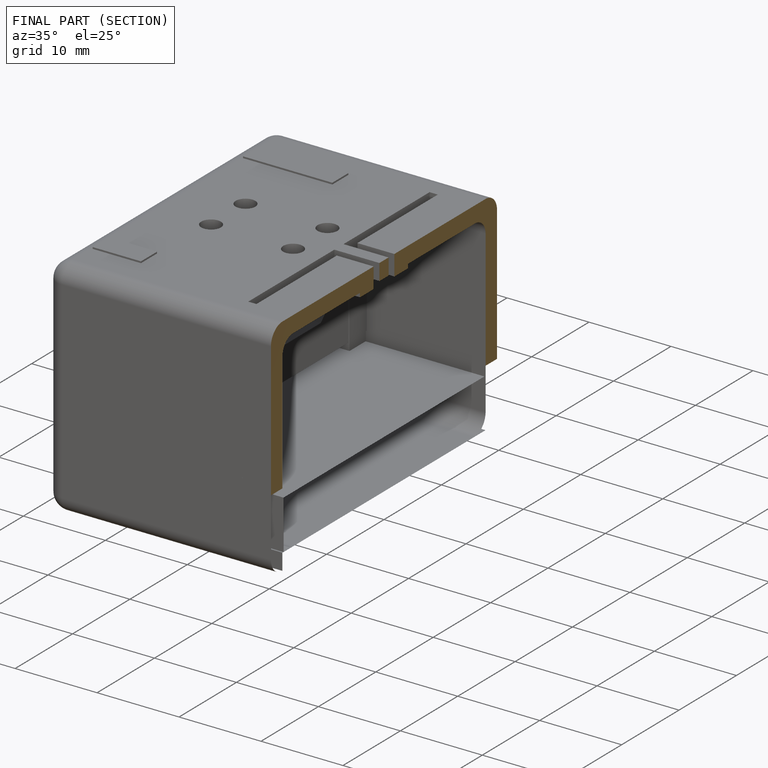
[diagram: finished part — half-section view (interior)]
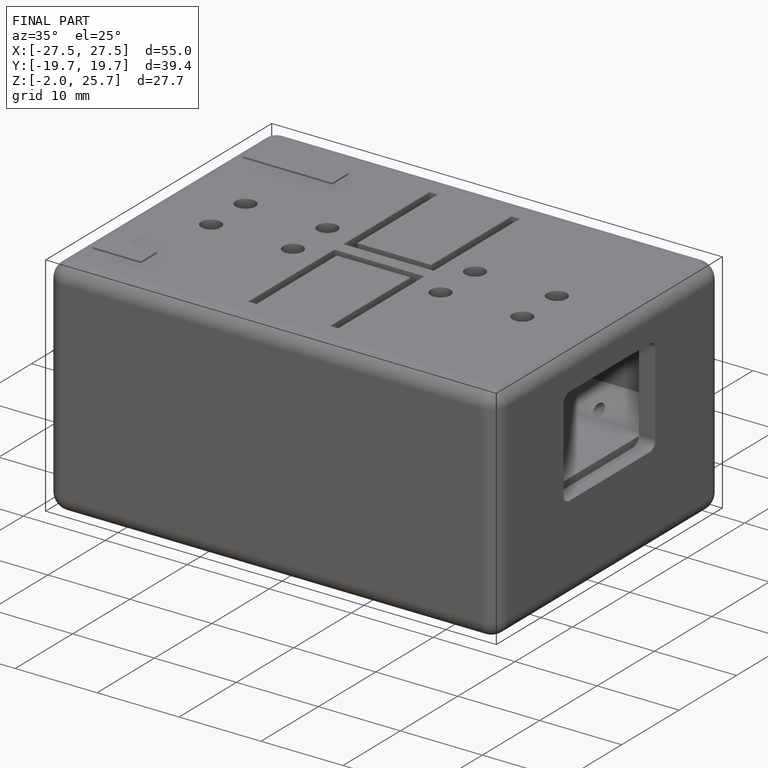
[diagram: finished part — iso view with bounding-box wireframe]
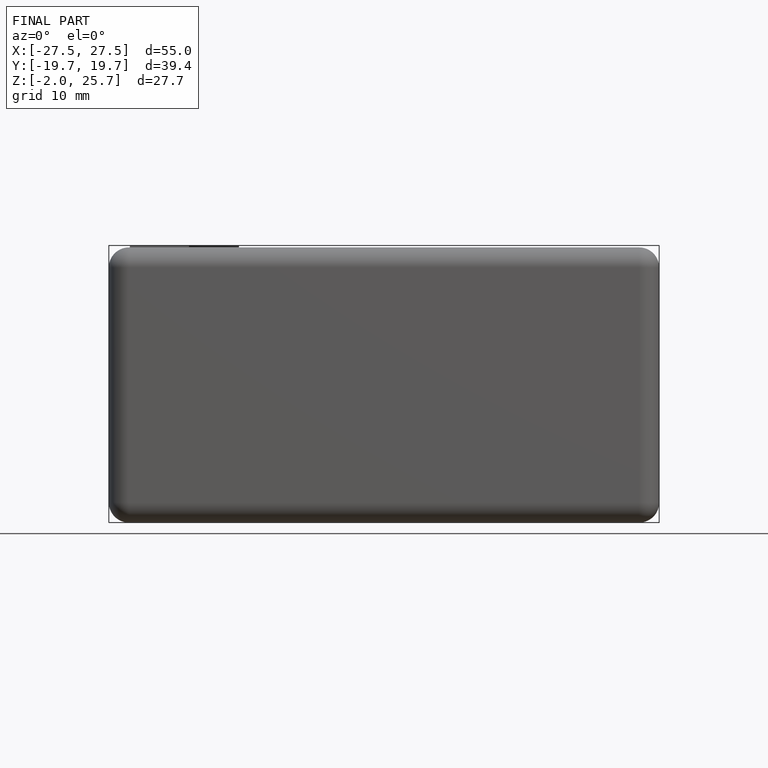
[diagram: finished part — front view with bounding-box wireframe]
